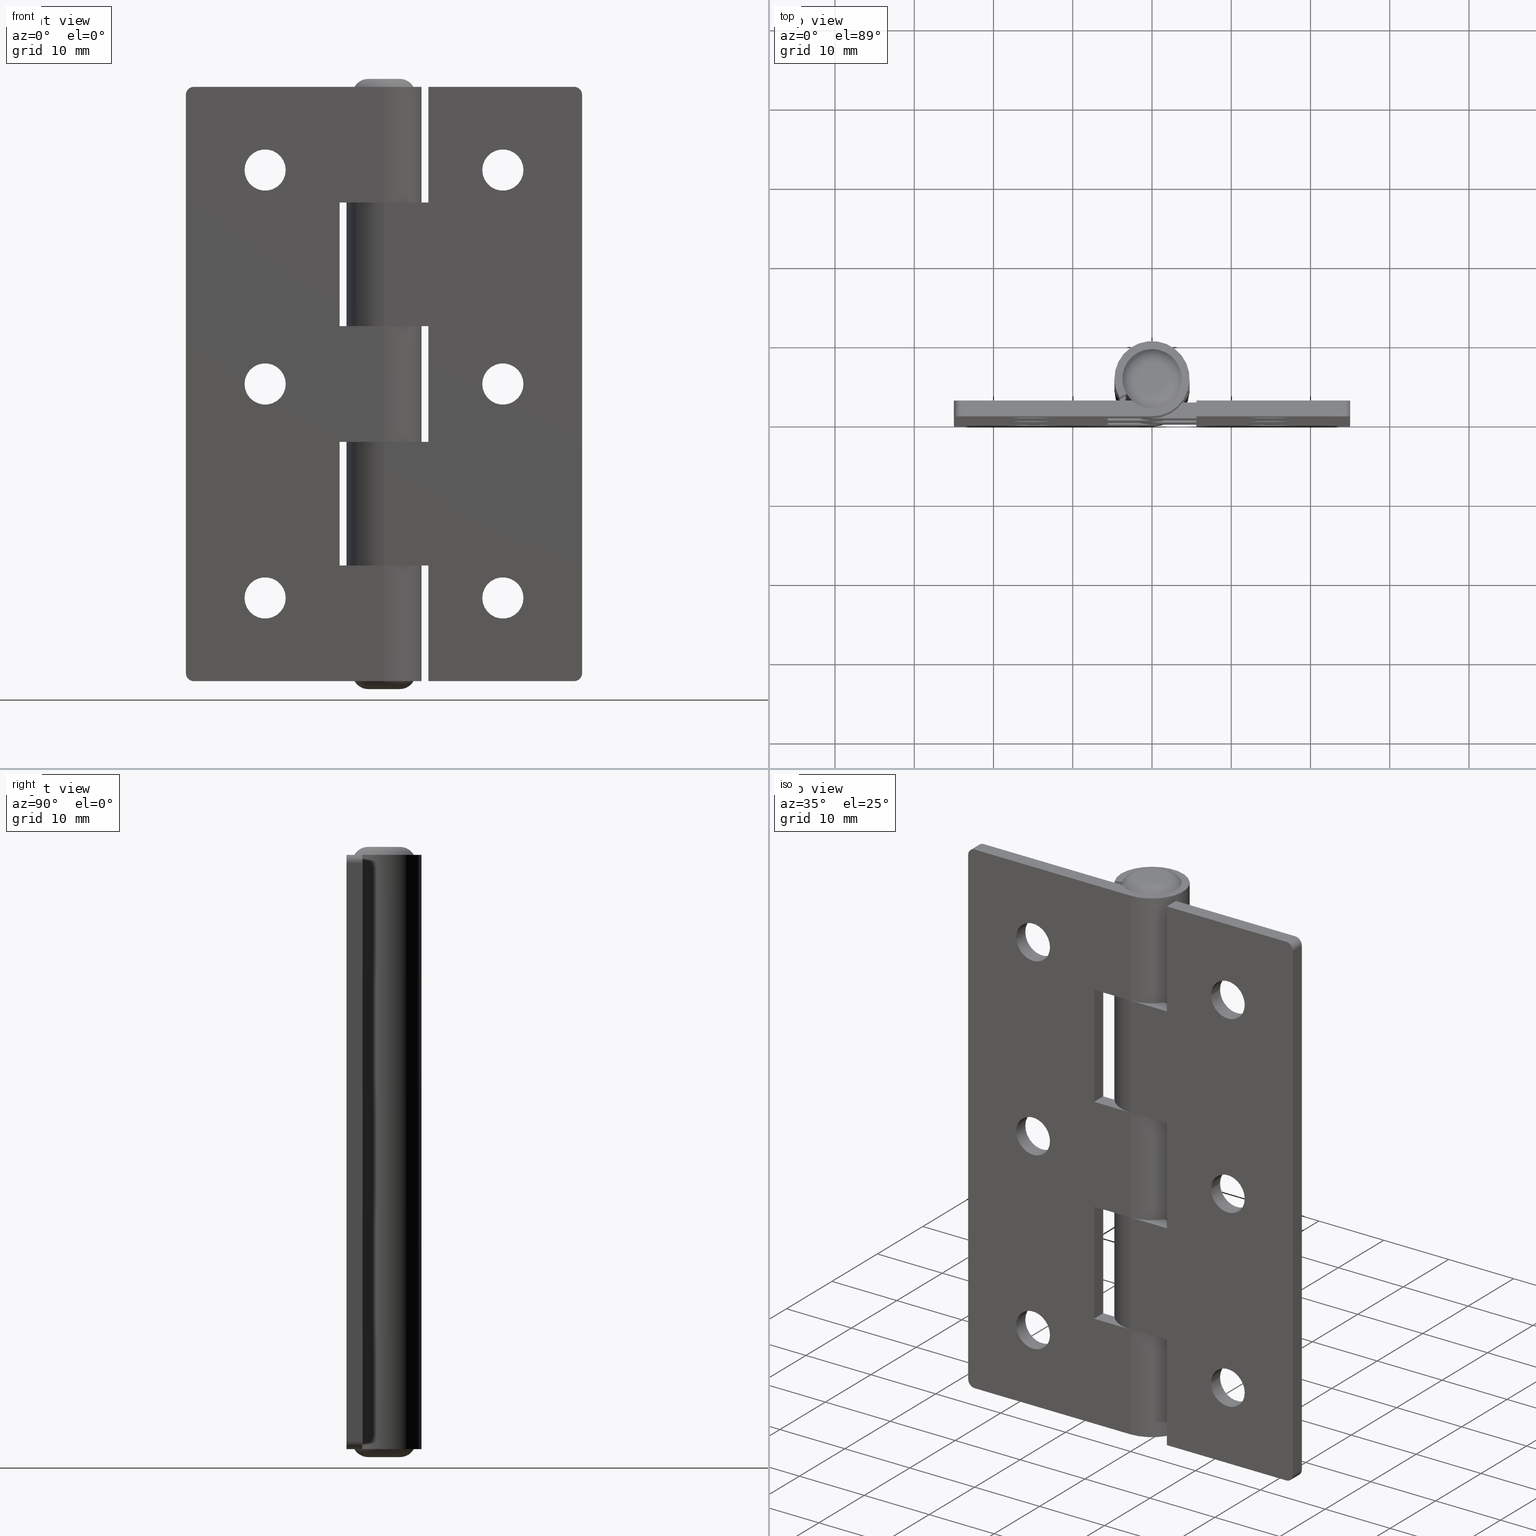
[diagram: canonical four-view strip — front | top / right | iso, engineering-drawing reading convention]
A machine part, canonical four-view strip (front | top / right | iso — engineering-drawing reading convention). The complete STEP part file that produces these views, byte-faithful:
ISO-10303-21;
HEADER;
/* Generated by software containing ST-Developer
 * from STEP Tools, Inc. (www.steptools.com) 
 */

FILE_DESCRIPTION(
/* description */ (''),
/* implementation_level */ '2;1');

FILE_NAME(
/* name */ '\\\\SYNOLOGYNAS\\web\\db2\\HG7550-20\\HG7550-20.stp',
/* time_stamp */ '2025-11-05T15:15:11+09:00',
/* author */ ('user'),
/* organization */ (''),
/* preprocessor_version */ 'ST-DEVELOPER v15.6',
/* originating_system */ 'Autodesk Inventor 2015',
/* authorisation */ '');

FILE_SCHEMA (('AUTOMOTIVE_DESIGN { 1 0 10303 214 3 1 1 }'));
ENDSEC;

DATA;
#10=MECHANICAL_DESIGN_GEOMETRIC_PRESENTATION_REPRESENTATION('',(#25,#26,
#27),#1703);
#11=ITEM_DEFINED_TRANSFORMATION($,$,#1006,#1110);
#12=ITEM_DEFINED_TRANSFORMATION($,$,#1067,#1111);
#13=(
REPRESENTATION_RELATIONSHIP($,$,#1718,#1720)
REPRESENTATION_RELATIONSHIP_WITH_TRANSFORMATION(#11)
SHAPE_REPRESENTATION_RELATIONSHIP()
);
#14=(
REPRESENTATION_RELATIONSHIP($,$,#1719,#1720)
REPRESENTATION_RELATIONSHIP_WITH_TRANSFORMATION(#12)
SHAPE_REPRESENTATION_RELATIONSHIP()
);
#15=CONTEXT_DEPENDENT_SHAPE_REPRESENTATION(#13,#1716);
#16=CONTEXT_DEPENDENT_SHAPE_REPRESENTATION(#14,#1717);
#17=NEXT_ASSEMBLY_USAGE_OCCURRENCE('HG7550-20-P1:1',$,$,#1724,#1722,$);
#18=NEXT_ASSEMBLY_USAGE_OCCURRENCE('HG7550-20-P2:1',$,$,#1724,#1723,$);
#19=TOROIDAL_SURFACE('',#1054,2.0179491924311,2.);
#20=TOROIDAL_SURFACE('',#1058,2.01794919243113,2.);
#21=SHAPE_REPRESENTATION_RELATIONSHIP('SRR','None',#1718,#23);
#22=SHAPE_REPRESENTATION_RELATIONSHIP('SRR','None',#1719,#24);
#23=ADVANCED_BREP_SHAPE_REPRESENTATION($,(#28,#29),#1700);
#24=ADVANCED_BREP_SHAPE_REPRESENTATION($,(#30),#1701);
#25=STYLED_ITEM('',(#1737),#28);
#26=STYLED_ITEM('',(#1737),#29);
#27=STYLED_ITEM('',(#1738),#30);
#28=MANIFOLD_SOLID_BREP('\X2\C194B9ACB4DC\X0\1',#1003);
#29=MANIFOLD_SOLID_BREP('\X2\C194B9ACB4DC\X0\2',#1004);
#30=MANIFOLD_SOLID_BREP('\X2\C194B9ACB4DC\X0\1',#1005);
#31=FACE_BOUND('',#144,.T.);
#32=FACE_BOUND('',#145,.T.);
#33=FACE_BOUND('',#146,.T.);
#34=FACE_BOUND('',#150,.T.);
#35=FACE_BOUND('',#151,.T.);
#36=FACE_BOUND('',#152,.T.);
#37=FACE_BOUND('',#154,.T.);
#38=FACE_BOUND('',#156,.T.);
#39=FACE_BOUND('',#158,.T.);
#40=FACE_BOUND('',#176,.T.);
#41=FACE_BOUND('',#179,.T.);
#42=FACE_BOUND('',#182,.T.);
#43=FACE_BOUND('',#184,.T.);
#44=FACE_BOUND('',#186,.T.);
#45=FACE_BOUND('',#190,.T.);
#46=FACE_BOUND('',#191,.T.);
#47=FACE_BOUND('',#192,.T.);
#48=FACE_BOUND('',#195,.T.);
#49=FACE_BOUND('',#196,.T.);
#50=FACE_BOUND('',#197,.T.);
#51=FACE_BOUND('',#200,.T.);
#52=FACE_BOUND('',#202,.T.);
#53=FACE_BOUND('',#204,.T.);
#54=PLANE('',#1010);
#55=PLANE('',#1013);
#56=PLANE('',#1020);
#57=PLANE('',#1023);
#58=PLANE('',#1030);
#59=PLANE('',#1033);
#60=PLANE('',#1034);
#61=PLANE('',#1037);
#62=PLANE('',#1040);
#63=PLANE('',#1041);
#64=PLANE('',#1046);
#65=PLANE('',#1047);
#66=PLANE('',#1048);
#67=PLANE('',#1052);
#68=PLANE('',#1057);
#69=PLANE('',#1061);
#70=PLANE('',#1065);
#71=PLANE('',#1066);
#72=PLANE('',#1071);
#73=PLANE('',#1072);
#74=PLANE('',#1079);
#75=PLANE('',#1083);
#76=PLANE('',#1087);
#77=PLANE('',#1088);
#78=PLANE('',#1091);
#79=PLANE('',#1094);
#80=PLANE('',#1095);
#81=PLANE('',#1098);
#82=PLANE('',#1101);
#83=PLANE('',#1104);
#84=PLANE('',#1107);
#85=PLANE('',#1108);
#86=FACE_OUTER_BOUND('',#141,.T.);
#87=FACE_OUTER_BOUND('',#142,.T.);
#88=FACE_OUTER_BOUND('',#143,.T.);
#89=FACE_OUTER_BOUND('',#147,.T.);
#90=FACE_OUTER_BOUND('',#148,.T.);
#91=FACE_OUTER_BOUND('',#149,.T.);
#92=FACE_OUTER_BOUND('',#153,.T.);
#93=FACE_OUTER_BOUND('',#155,.T.);
#94=FACE_OUTER_BOUND('',#157,.T.);
#95=FACE_OUTER_BOUND('',#159,.T.);
#96=FACE_OUTER_BOUND('',#160,.T.);
#97=FACE_OUTER_BOUND('',#161,.T.);
#98=FACE_OUTER_BOUND('',#162,.T.);
#99=FACE_OUTER_BOUND('',#163,.T.);
#100=FACE_OUTER_BOUND('',#164,.T.);
#101=FACE_OUTER_BOUND('',#165,.T.);
#102=FACE_OUTER_BOUND('',#166,.T.);
#103=FACE_OUTER_BOUND('',#167,.T.);
#104=FACE_OUTER_BOUND('',#168,.T.);
#105=FACE_OUTER_BOUND('',#169,.T.);
#106=FACE_OUTER_BOUND('',#170,.T.);
#107=FACE_OUTER_BOUND('',#171,.T.);
#108=FACE_OUTER_BOUND('',#172,.T.);
#109=FACE_OUTER_BOUND('',#173,.T.);
#110=FACE_OUTER_BOUND('',#174,.T.);
#111=FACE_OUTER_BOUND('',#175,.T.);
#112=FACE_OUTER_BOUND('',#177,.T.);
#113=FACE_OUTER_BOUND('',#178,.T.);
#114=FACE_OUTER_BOUND('',#180,.T.);
#115=FACE_OUTER_BOUND('',#181,.T.);
#116=FACE_OUTER_BOUND('',#183,.T.);
#117=FACE_OUTER_BOUND('',#185,.T.);
#118=FACE_OUTER_BOUND('',#187,.T.);
#119=FACE_OUTER_BOUND('',#188,.T.);
#120=FACE_OUTER_BOUND('',#189,.T.);
#121=FACE_OUTER_BOUND('',#193,.T.);
#122=FACE_OUTER_BOUND('',#194,.T.);
#123=FACE_OUTER_BOUND('',#198,.T.);
#124=FACE_OUTER_BOUND('',#199,.T.);
#125=FACE_OUTER_BOUND('',#201,.T.);
#126=FACE_OUTER_BOUND('',#203,.T.);
#127=FACE_OUTER_BOUND('',#205,.T.);
#128=FACE_OUTER_BOUND('',#206,.T.);
#129=FACE_OUTER_BOUND('',#207,.T.);
#130=FACE_OUTER_BOUND('',#208,.T.);
#131=FACE_OUTER_BOUND('',#209,.T.);
#132=FACE_OUTER_BOUND('',#210,.T.);
#133=FACE_OUTER_BOUND('',#211,.T.);
#134=FACE_OUTER_BOUND('',#212,.T.);
#135=FACE_OUTER_BOUND('',#213,.T.);
#136=FACE_OUTER_BOUND('',#214,.T.);
#137=FACE_OUTER_BOUND('',#215,.T.);
#138=FACE_OUTER_BOUND('',#216,.T.);
#139=FACE_OUTER_BOUND('',#217,.T.);
#140=FACE_OUTER_BOUND('',#218,.T.);
#141=EDGE_LOOP('',(#663,#664,#665,#666));
#142=EDGE_LOOP('',(#667,#668,#669,#670,#671,#672));
#143=EDGE_LOOP('',(#673,#674,#675,#676,#677,#678,#679,#680,#681,#682,#683,
#684,#685,#686));
#144=EDGE_LOOP('',(#687));
#145=EDGE_LOOP('',(#688));
#146=EDGE_LOOP('',(#689));
#147=EDGE_LOOP('',(#690,#691,#692,#693));
#148=EDGE_LOOP('',(#694,#695,#696,#697,#698,#699));
#149=EDGE_LOOP('',(#700,#701,#702,#703,#704,#705,#706,#707,#708,#709,#710,
#711,#712,#713));
#150=EDGE_LOOP('',(#714));
#151=EDGE_LOOP('',(#715));
#152=EDGE_LOOP('',(#716));
#153=EDGE_LOOP('',(#717));
#154=EDGE_LOOP('',(#718));
#155=EDGE_LOOP('',(#719));
#156=EDGE_LOOP('',(#720));
#157=EDGE_LOOP('',(#721));
#158=EDGE_LOOP('',(#722));
#159=EDGE_LOOP('',(#723,#724,#725,#726,#727,#728));
#160=EDGE_LOOP('',(#729,#730,#731,#732));
#161=EDGE_LOOP('',(#733,#734,#735,#736,#737,#738));
#162=EDGE_LOOP('',(#739,#740,#741,#742,#743,#744));
#163=EDGE_LOOP('',(#745,#746,#747,#748));
#164=EDGE_LOOP('',(#749,#750,#751,#752,#753,#754));
#165=EDGE_LOOP('',(#755,#756,#757,#758));
#166=EDGE_LOOP('',(#759,#760,#761,#762));
#167=EDGE_LOOP('',(#763,#764,#765,#766));
#168=EDGE_LOOP('',(#767,#768,#769,#770));
#169=EDGE_LOOP('',(#771,#772,#773,#774));
#170=EDGE_LOOP('',(#775,#776,#777,#778));
#171=EDGE_LOOP('',(#779,#780,#781,#782));
#172=EDGE_LOOP('',(#783,#784,#785,#786));
#173=EDGE_LOOP('',(#787,#788,#789,#790));
#174=EDGE_LOOP('',(#791,#792,#793,#794));
#175=EDGE_LOOP('',(#795));
#176=EDGE_LOOP('',(#796));
#177=EDGE_LOOP('',(#797));
#178=EDGE_LOOP('',(#798));
#179=EDGE_LOOP('',(#799));
#180=EDGE_LOOP('',(#800));
#181=EDGE_LOOP('',(#801));
#182=EDGE_LOOP('',(#802));
#183=EDGE_LOOP('',(#803));
#184=EDGE_LOOP('',(#804));
#185=EDGE_LOOP('',(#805));
#186=EDGE_LOOP('',(#806));
#187=EDGE_LOOP('',(#807,#808,#809,#810));
#188=EDGE_LOOP('',(#811,#812,#813,#814));
#189=EDGE_LOOP('',(#815,#816,#817,#818,#819,#820,#821,#822,#823,#824,#825,
#826,#827,#828));
#190=EDGE_LOOP('',(#829));
#191=EDGE_LOOP('',(#830));
#192=EDGE_LOOP('',(#831));
#193=EDGE_LOOP('',(#832,#833,#834,#835));
#194=EDGE_LOOP('',(#836,#837,#838,#839,#840,#841,#842,#843,#844,#845,#846,
#847,#848,#849));
#195=EDGE_LOOP('',(#850));
#196=EDGE_LOOP('',(#851));
#197=EDGE_LOOP('',(#852));
#198=EDGE_LOOP('',(#853,#854,#855,#856));
#199=EDGE_LOOP('',(#857));
#200=EDGE_LOOP('',(#858));
#201=EDGE_LOOP('',(#859));
#202=EDGE_LOOP('',(#860));
#203=EDGE_LOOP('',(#861));
#204=EDGE_LOOP('',(#862));
#205=EDGE_LOOP('',(#863,#864,#865,#866));
#206=EDGE_LOOP('',(#867,#868,#869,#870,#871,#872));
#207=EDGE_LOOP('',(#873,#874,#875,#876,#877,#878));
#208=EDGE_LOOP('',(#879,#880,#881,#882));
#209=EDGE_LOOP('',(#883,#884,#885,#886,#887,#888));
#210=EDGE_LOOP('',(#889,#890,#891,#892,#893,#894));
#211=EDGE_LOOP('',(#895,#896,#897,#898));
#212=EDGE_LOOP('',(#899,#900,#901,#902));
#213=EDGE_LOOP('',(#903,#904,#905,#906));
#214=EDGE_LOOP('',(#907,#908,#909,#910));
#215=EDGE_LOOP('',(#911,#912,#913,#914));
#216=EDGE_LOOP('',(#915,#916,#917,#918));
#217=EDGE_LOOP('',(#919,#920,#921,#922));
#218=EDGE_LOOP('',(#923,#924,#925,#926));
#219=LINE('',#1416,#305);
#220=LINE('',#1419,#306);
#221=LINE('',#1422,#307);
#222=LINE('',#1426,#308);
#223=LINE('',#1429,#309);
#224=LINE('',#1432,#310);
#225=LINE('',#1436,#311);
#226=LINE('',#1438,#312);
#227=LINE('',#1440,#313);
#228=LINE('',#1442,#314);
#229=LINE('',#1444,#315);
#230=LINE('',#1446,#316);
#231=LINE('',#1448,#317);
#232=LINE('',#1450,#318);
#233=LINE('',#1452,#319);
#234=LINE('',#1453,#320);
#235=LINE('',#1464,#321);
#236=LINE('',#1465,#322);
#237=LINE('',#1468,#323);
#238=LINE('',#1472,#324);
#239=LINE('',#1476,#325);
#240=LINE('',#1478,#326);
#241=LINE('',#1480,#327);
#242=LINE('',#1482,#328);
#243=LINE('',#1484,#329);
#244=LINE('',#1486,#330);
#245=LINE('',#1488,#331);
#246=LINE('',#1490,#332);
#247=LINE('',#1491,#333);
#248=LINE('',#1492,#334);
#249=LINE('',#1505,#335);
#250=LINE('',#1508,#336);
#251=LINE('',#1510,#337);
#252=LINE('',#1515,#338);
#253=LINE('',#1520,#339);
#254=LINE('',#1523,#340);
#255=LINE('',#1525,#341);
#256=LINE('',#1530,#342);
#257=LINE('',#1533,#343);
#258=LINE('',#1535,#344);
#259=LINE('',#1537,#345);
#260=LINE('',#1539,#346);
#261=LINE('',#1541,#347);
#262=LINE('',#1542,#348);
#263=LINE('',#1573,#349);
#264=LINE('',#1576,#350);
#265=LINE('',#1579,#351);
#266=LINE('',#1581,#352);
#267=LINE('',#1582,#353);
#268=LINE('',#1585,#354);
#269=LINE('',#1587,#355);
#270=LINE('',#1589,#356);
#271=LINE('',#1591,#357);
#272=LINE('',#1593,#358);
#273=LINE('',#1595,#359);
#274=LINE('',#1597,#360);
#275=LINE('',#1599,#361);
#276=LINE('',#1601,#362);
#277=LINE('',#1603,#363);
#278=LINE('',#1605,#364);
#279=LINE('',#1615,#365);
#280=LINE('',#1619,#366);
#281=LINE('',#1621,#367);
#282=LINE('',#1623,#368);
#283=LINE('',#1625,#369);
#284=LINE('',#1627,#370);
#285=LINE('',#1629,#371);
#286=LINE('',#1631,#372);
#287=LINE('',#1633,#373);
#288=LINE('',#1635,#374);
#289=LINE('',#1637,#375);
#290=LINE('',#1638,#376);
#291=LINE('',#1646,#377);
#292=LINE('',#1651,#378);
#293=LINE('',#1656,#379);
#294=LINE('',#1661,#380);
#295=LINE('',#1664,#381);
#296=LINE('',#1666,#382);
#297=LINE('',#1670,#383);
#298=LINE('',#1673,#384);
#299=LINE('',#1678,#385);
#300=LINE('',#1680,#386);
#301=LINE('',#1683,#387);
#302=LINE('',#1685,#388);
#303=LINE('',#1687,#389);
#304=LINE('',#1690,#390);
#305=VECTOR('',#1118,2.);
#306=VECTOR('',#1121,2.);
#307=VECTOR('',#1124,24.);
#308=VECTOR('',#1127,2.);
#309=VECTOR('',#1130,24.);
#310=VECTOR('',#1133,73.);
#311=VECTOR('',#1136,24.);
#312=VECTOR('',#1137,14.6);
#313=VECTOR('',#1138,5.60000000000001);
#314=VECTOR('',#1139,15.6);
#315=VECTOR('',#1140,5.6);
#316=VECTOR('',#1141,14.6);
#317=VECTOR('',#1142,5.6);
#318=VECTOR('',#1143,15.6);
#319=VECTOR('',#1144,5.59999999999999);
#320=VECTOR('',#1145,14.6);
#321=VECTOR('',#1156,2.);
#322=VECTOR('',#1157,2.);
#323=VECTOR('',#1160,24.);
#324=VECTOR('',#1163,2.);
#325=VECTOR('',#1168,14.6);
#326=VECTOR('',#1169,5.6);
#327=VECTOR('',#1170,15.6);
#328=VECTOR('',#1171,5.6);
#329=VECTOR('',#1172,14.6);
#330=VECTOR('',#1173,5.6);
#331=VECTOR('',#1174,15.6);
#332=VECTOR('',#1175,5.60000000000001);
#333=VECTOR('',#1176,14.6);
#334=VECTOR('',#1177,73.);
#335=VECTOR('',#1194,2.);
#336=VECTOR('',#1197,2.);
#337=VECTOR('',#1200,2.);
#338=VECTOR('',#1205,2.);
#339=VECTOR('',#1212,2.);
#340=VECTOR('',#1215,2.);
#341=VECTOR('',#1218,2.);
#342=VECTOR('',#1223,2.);
#343=VECTOR('',#1228,14.6);
#344=VECTOR('',#1231,14.6);
#345=VECTOR('',#1234,14.6);
#346=VECTOR('',#1237,14.6);
#347=VECTOR('',#1240,14.6);
#348=VECTOR('',#1241,14.6);
#349=VECTOR('',#1284,2.);
#350=VECTOR('',#1287,2.);
#351=VECTOR('',#1290,73.);
#352=VECTOR('',#1291,2.);
#353=VECTOR('',#1292,73.);
#354=VECTOR('',#1295,18.4);
#355=VECTOR('',#1296,14.6);
#356=VECTOR('',#1297,5.6);
#357=VECTOR('',#1298,15.6);
#358=VECTOR('',#1299,5.6);
#359=VECTOR('',#1300,14.6);
#360=VECTOR('',#1301,5.6);
#361=VECTOR('',#1302,15.6);
#362=VECTOR('',#1303,5.60000000000001);
#363=VECTOR('',#1304,14.6);
#364=VECTOR('',#1305,18.4);
#365=VECTOR('',#1316,2.);
#366=VECTOR('',#1321,18.4);
#367=VECTOR('',#1322,14.6);
#368=VECTOR('',#1323,5.60000000000001);
#369=VECTOR('',#1324,15.6);
#370=VECTOR('',#1325,5.6);
#371=VECTOR('',#1326,14.6);
#372=VECTOR('',#1327,5.6);
#373=VECTOR('',#1328,15.6);
#374=VECTOR('',#1329,5.59999999999999);
#375=VECTOR('',#1330,14.6);
#376=VECTOR('',#1331,18.4);
#377=VECTOR('',#1340,2.);
#378=VECTOR('',#1349,2.);
#379=VECTOR('',#1354,2.);
#380=VECTOR('',#1361,2.);
#381=VECTOR('',#1364,2.);
#382=VECTOR('',#1367,2.);
#383=VECTOR('',#1372,2.);
#384=VECTOR('',#1375,2.);
#385=VECTOR('',#1380,2.);
#386=VECTOR('',#1383,2.);
#387=VECTOR('',#1388,15.6);
#388=VECTOR('',#1391,15.6);
#389=VECTOR('',#1394,15.6);
#390=VECTOR('',#1399,15.6);
#391=CIRCLE('',#1008,1.);
#392=CIRCLE('',#1009,1.);
#393=CIRCLE('',#1011,2.75);
#394=CIRCLE('',#1012,4.75);
#395=CIRCLE('',#1014,1.);
#396=CIRCLE('',#1015,2.6);
#397=CIRCLE('',#1016,2.6);
#398=CIRCLE('',#1017,2.6);
#399=CIRCLE('',#1019,1.);
#400=CIRCLE('',#1021,4.75);
#401=CIRCLE('',#1022,2.75);
#402=CIRCLE('',#1024,2.6);
#403=CIRCLE('',#1025,2.6);
#404=CIRCLE('',#1026,2.6);
#405=CIRCLE('',#1031,4.75);
#406=CIRCLE('',#1032,2.75);
#407=CIRCLE('',#1035,4.75);
#408=CIRCLE('',#1036,2.75);
#409=CIRCLE('',#1038,4.75);
#410=CIRCLE('',#1039,2.75);
#411=CIRCLE('',#1042,4.75);
#412=CIRCLE('',#1043,2.75);
#413=CIRCLE('',#1055,3.74999999999998);
#414=CIRCLE('',#1056,2.0179491924311);
#415=CIRCLE('',#1059,2.01794919243113);
#416=CIRCLE('',#1060,3.75000000000001);
#417=CIRCLE('',#1063,2.75000000000001);
#418=CIRCLE('',#1064,2.75000000000001);
#419=CIRCLE('',#1069,1.);
#420=CIRCLE('',#1070,1.);
#421=CIRCLE('',#1073,1.);
#422=CIRCLE('',#1074,2.6);
#423=CIRCLE('',#1075,2.6);
#424=CIRCLE('',#1076,2.6);
#425=CIRCLE('',#1078,1.);
#426=CIRCLE('',#1080,2.6);
#427=CIRCLE('',#1081,2.6);
#428=CIRCLE('',#1082,2.6);
#429=CIRCLE('',#1089,4.75);
#430=CIRCLE('',#1090,2.75);
#431=CIRCLE('',#1092,4.75);
#432=CIRCLE('',#1093,2.75);
#433=CIRCLE('',#1096,4.75);
#434=CIRCLE('',#1097,2.75);
#435=CIRCLE('',#1099,4.75);
#436=CIRCLE('',#1100,2.75);
#437=VERTEX_POINT('',#1412);
#438=VERTEX_POINT('',#1413);
#439=VERTEX_POINT('',#1415);
#440=VERTEX_POINT('',#1417);
#441=VERTEX_POINT('',#1421);
#442=VERTEX_POINT('',#1423);
#443=VERTEX_POINT('',#1425);
#444=VERTEX_POINT('',#1427);
#445=VERTEX_POINT('',#1431);
#446=VERTEX_POINT('',#1433);
#447=VERTEX_POINT('',#1435);
#448=VERTEX_POINT('',#1437);
#449=VERTEX_POINT('',#1439);
#450=VERTEX_POINT('',#1441);
#451=VERTEX_POINT('',#1443);
#452=VERTEX_POINT('',#1445);
#453=VERTEX_POINT('',#1447);
#454=VERTEX_POINT('',#1449);
#455=VERTEX_POINT('',#1451);
#456=VERTEX_POINT('',#1454);
#457=VERTEX_POINT('',#1456);
#458=VERTEX_POINT('',#1458);
#459=VERTEX_POINT('',#1461);
#460=VERTEX_POINT('',#1462);
#461=VERTEX_POINT('',#1467);
#462=VERTEX_POINT('',#1469);
#463=VERTEX_POINT('',#1471);
#464=VERTEX_POINT('',#1475);
#465=VERTEX_POINT('',#1477);
#466=VERTEX_POINT('',#1479);
#467=VERTEX_POINT('',#1481);
#468=VERTEX_POINT('',#1483);
#469=VERTEX_POINT('',#1485);
#470=VERTEX_POINT('',#1487);
#471=VERTEX_POINT('',#1489);
#472=VERTEX_POINT('',#1493);
#473=VERTEX_POINT('',#1495);
#474=VERTEX_POINT('',#1497);
#475=VERTEX_POINT('',#1503);
#476=VERTEX_POINT('',#1506);
#477=VERTEX_POINT('',#1512);
#478=VERTEX_POINT('',#1514);
#479=VERTEX_POINT('',#1518);
#480=VERTEX_POINT('',#1521);
#481=VERTEX_POINT('',#1527);
#482=VERTEX_POINT('',#1529);
#483=VERTEX_POINT('',#1549);
#484=VERTEX_POINT('',#1551);
#485=VERTEX_POINT('',#1555);
#486=VERTEX_POINT('',#1557);
#487=VERTEX_POINT('',#1561);
#488=VERTEX_POINT('',#1563);
#489=VERTEX_POINT('',#1569);
#490=VERTEX_POINT('',#1570);
#491=VERTEX_POINT('',#1572);
#492=VERTEX_POINT('',#1574);
#493=VERTEX_POINT('',#1578);
#494=VERTEX_POINT('',#1580);
#495=VERTEX_POINT('',#1584);
#496=VERTEX_POINT('',#1586);
#497=VERTEX_POINT('',#1588);
#498=VERTEX_POINT('',#1590);
#499=VERTEX_POINT('',#1592);
#500=VERTEX_POINT('',#1594);
#501=VERTEX_POINT('',#1596);
#502=VERTEX_POINT('',#1598);
#503=VERTEX_POINT('',#1600);
#504=VERTEX_POINT('',#1602);
#505=VERTEX_POINT('',#1604);
#506=VERTEX_POINT('',#1607);
#507=VERTEX_POINT('',#1609);
#508=VERTEX_POINT('',#1611);
#509=VERTEX_POINT('',#1614);
#510=VERTEX_POINT('',#1618);
#511=VERTEX_POINT('',#1620);
#512=VERTEX_POINT('',#1622);
#513=VERTEX_POINT('',#1624);
#514=VERTEX_POINT('',#1626);
#515=VERTEX_POINT('',#1628);
#516=VERTEX_POINT('',#1630);
#517=VERTEX_POINT('',#1632);
#518=VERTEX_POINT('',#1634);
#519=VERTEX_POINT('',#1636);
#520=VERTEX_POINT('',#1639);
#521=VERTEX_POINT('',#1641);
#522=VERTEX_POINT('',#1643);
#523=VERTEX_POINT('',#1653);
#524=VERTEX_POINT('',#1655);
#525=VERTEX_POINT('',#1659);
#526=VERTEX_POINT('',#1662);
#527=VERTEX_POINT('',#1668);
#528=VERTEX_POINT('',#1671);
#529=VERTEX_POINT('',#1675);
#530=VERTEX_POINT('',#1677);
#531=EDGE_CURVE('',#437,#438,#391,.T.);
#532=EDGE_CURVE('',#438,#439,#219,.T.);
#533=EDGE_CURVE('',#439,#440,#392,.T.);
#534=EDGE_CURVE('',#440,#437,#220,.T.);
#535=EDGE_CURVE('',#438,#441,#221,.T.);
#536=EDGE_CURVE('',#441,#442,#393,.T.);
#537=EDGE_CURVE('',#442,#443,#222,.T.);
#538=EDGE_CURVE('',#443,#444,#394,.T.);
#539=EDGE_CURVE('',#444,#439,#223,.T.);
#540=EDGE_CURVE('',#437,#445,#224,.T.);
#541=EDGE_CURVE('',#446,#445,#395,.T.);
#542=EDGE_CURVE('',#447,#446,#225,.T.);
#543=EDGE_CURVE('',#448,#447,#226,.T.);
#544=EDGE_CURVE('',#448,#449,#227,.T.);
#545=EDGE_CURVE('',#449,#450,#228,.T.);
#546=EDGE_CURVE('',#450,#451,#229,.T.);
#547=EDGE_CURVE('',#452,#451,#230,.T.);
#548=EDGE_CURVE('',#452,#453,#231,.T.);
#549=EDGE_CURVE('',#453,#454,#232,.T.);
#550=EDGE_CURVE('',#454,#455,#233,.T.);
#551=EDGE_CURVE('',#441,#455,#234,.T.);
#552=EDGE_CURVE('',#456,#456,#396,.T.);
#553=EDGE_CURVE('',#457,#457,#397,.T.);
#554=EDGE_CURVE('',#458,#458,#398,.T.);
#555=EDGE_CURVE('',#459,#460,#399,.T.);
#556=EDGE_CURVE('',#460,#446,#235,.T.);
#557=EDGE_CURVE('',#445,#459,#236,.T.);
#558=EDGE_CURVE('',#460,#461,#237,.T.);
#559=EDGE_CURVE('',#461,#462,#400,.T.);
#560=EDGE_CURVE('',#462,#463,#238,.T.);
#561=EDGE_CURVE('',#463,#447,#401,.T.);
#562=EDGE_CURVE('',#444,#464,#239,.T.);
#563=EDGE_CURVE('',#464,#465,#240,.T.);
#564=EDGE_CURVE('',#465,#466,#241,.T.);
#565=EDGE_CURVE('',#466,#467,#242,.T.);
#566=EDGE_CURVE('',#467,#468,#243,.T.);
#567=EDGE_CURVE('',#468,#469,#244,.T.);
#568=EDGE_CURVE('',#469,#470,#245,.T.);
#569=EDGE_CURVE('',#470,#471,#246,.T.);
#570=EDGE_CURVE('',#471,#461,#247,.T.);
#571=EDGE_CURVE('',#440,#459,#248,.T.);
#572=EDGE_CURVE('',#472,#472,#402,.T.);
#573=EDGE_CURVE('',#473,#473,#403,.T.);
#574=EDGE_CURVE('',#474,#474,#404,.T.);
#575=EDGE_CURVE('',#467,#475,#405,.T.);
#576=EDGE_CURVE('',#466,#453,#249,.T.);
#577=EDGE_CURVE('',#476,#452,#406,.T.);
#578=EDGE_CURVE('',#475,#476,#250,.T.);
#579=EDGE_CURVE('',#465,#454,#251,.T.);
#580=EDGE_CURVE('',#477,#464,#407,.T.);
#581=EDGE_CURVE('',#478,#477,#252,.T.);
#582=EDGE_CURVE('',#455,#478,#408,.T.);
#583=EDGE_CURVE('',#471,#479,#409,.T.);
#584=EDGE_CURVE('',#470,#449,#253,.T.);
#585=EDGE_CURVE('',#480,#448,#410,.T.);
#586=EDGE_CURVE('',#479,#480,#254,.T.);
#587=EDGE_CURVE('',#469,#450,#255,.T.);
#588=EDGE_CURVE('',#481,#468,#411,.T.);
#589=EDGE_CURVE('',#482,#481,#256,.T.);
#590=EDGE_CURVE('',#451,#482,#412,.T.);
#591=EDGE_CURVE('',#443,#477,#257,.T.);
#592=EDGE_CURVE('',#479,#462,#258,.T.);
#593=EDGE_CURVE('',#480,#463,#259,.T.);
#594=EDGE_CURVE('',#442,#478,#260,.T.);
#595=EDGE_CURVE('',#476,#482,#261,.T.);
#596=EDGE_CURVE('',#475,#481,#262,.T.);
#597=EDGE_CURVE('',#483,#483,#413,.T.);
#598=EDGE_CURVE('',#484,#484,#414,.T.);
#599=EDGE_CURVE('',#485,#485,#415,.T.);
#600=EDGE_CURVE('',#486,#486,#416,.T.);
#601=EDGE_CURVE('',#487,#487,#417,.T.);
#602=EDGE_CURVE('',#488,#488,#418,.T.);
#603=EDGE_CURVE('',#489,#490,#419,.T.);
#604=EDGE_CURVE('',#490,#491,#263,.T.);
#605=EDGE_CURVE('',#491,#492,#420,.T.);
#606=EDGE_CURVE('',#492,#489,#264,.T.);
#607=EDGE_CURVE('',#492,#493,#265,.T.);
#608=EDGE_CURVE('',#494,#493,#266,.T.);
#609=EDGE_CURVE('',#489,#494,#267,.T.);
#610=EDGE_CURVE('',#495,#491,#268,.T.);
#611=EDGE_CURVE('',#495,#496,#269,.T.);
#612=EDGE_CURVE('',#496,#497,#270,.T.);
#613=EDGE_CURVE('',#497,#498,#271,.T.);
#614=EDGE_CURVE('',#498,#499,#272,.T.);
#615=EDGE_CURVE('',#499,#500,#273,.T.);
#616=EDGE_CURVE('',#500,#501,#274,.T.);
#617=EDGE_CURVE('',#501,#502,#275,.T.);
#618=EDGE_CURVE('',#502,#503,#276,.T.);
#619=EDGE_CURVE('',#503,#504,#277,.T.);
#620=EDGE_CURVE('',#505,#504,#278,.T.);
#621=EDGE_CURVE('',#493,#505,#421,.T.);
#622=EDGE_CURVE('',#506,#506,#422,.T.);
#623=EDGE_CURVE('',#507,#507,#423,.T.);
#624=EDGE_CURVE('',#508,#508,#424,.T.);
#625=EDGE_CURVE('',#505,#509,#279,.T.);
#626=EDGE_CURVE('',#509,#494,#425,.T.);
#627=EDGE_CURVE('',#510,#509,#280,.T.);
#628=EDGE_CURVE('',#510,#511,#281,.T.);
#629=EDGE_CURVE('',#511,#512,#282,.T.);
#630=EDGE_CURVE('',#513,#512,#283,.T.);
#631=EDGE_CURVE('',#513,#514,#284,.T.);
#632=EDGE_CURVE('',#514,#515,#285,.T.);
#633=EDGE_CURVE('',#515,#516,#286,.T.);
#634=EDGE_CURVE('',#517,#516,#287,.T.);
#635=EDGE_CURVE('',#517,#518,#288,.T.);
#636=EDGE_CURVE('',#518,#519,#289,.T.);
#637=EDGE_CURVE('',#490,#519,#290,.T.);
#638=EDGE_CURVE('',#520,#520,#426,.T.);
#639=EDGE_CURVE('',#521,#521,#427,.T.);
#640=EDGE_CURVE('',#522,#522,#428,.T.);
#641=EDGE_CURVE('',#504,#510,#291,.T.);
#642=EDGE_CURVE('',#503,#511,#292,.T.);
#643=EDGE_CURVE('',#523,#502,#429,.T.);
#644=EDGE_CURVE('',#524,#523,#293,.T.);
#645=EDGE_CURVE('',#512,#524,#430,.T.);
#646=EDGE_CURVE('',#497,#525,#431,.T.);
#647=EDGE_CURVE('',#496,#518,#294,.T.);
#648=EDGE_CURVE('',#526,#517,#432,.T.);
#649=EDGE_CURVE('',#525,#526,#295,.T.);
#650=EDGE_CURVE('',#519,#495,#296,.T.);
#651=EDGE_CURVE('',#501,#527,#433,.T.);
#652=EDGE_CURVE('',#500,#514,#297,.T.);
#653=EDGE_CURVE('',#528,#513,#434,.T.);
#654=EDGE_CURVE('',#527,#528,#298,.T.);
#655=EDGE_CURVE('',#529,#498,#435,.T.);
#656=EDGE_CURVE('',#530,#529,#299,.T.);
#657=EDGE_CURVE('',#516,#530,#436,.T.);
#658=EDGE_CURVE('',#499,#515,#300,.T.);
#659=EDGE_CURVE('',#525,#529,#301,.T.);
#660=EDGE_CURVE('',#527,#523,#302,.T.);
#661=EDGE_CURVE('',#526,#530,#303,.T.);
#662=EDGE_CURVE('',#528,#524,#304,.T.);
#663=ORIENTED_EDGE('',*,*,#531,.T.);
#664=ORIENTED_EDGE('',*,*,#532,.T.);
#665=ORIENTED_EDGE('',*,*,#533,.T.);
#666=ORIENTED_EDGE('',*,*,#534,.T.);
#667=ORIENTED_EDGE('',*,*,#532,.F.);
#668=ORIENTED_EDGE('',*,*,#535,.T.);
#669=ORIENTED_EDGE('',*,*,#536,.T.);
#670=ORIENTED_EDGE('',*,*,#537,.T.);
#671=ORIENTED_EDGE('',*,*,#538,.T.);
#672=ORIENTED_EDGE('',*,*,#539,.T.);
#673=ORIENTED_EDGE('',*,*,#531,.F.);
#674=ORIENTED_EDGE('',*,*,#540,.T.);
#675=ORIENTED_EDGE('',*,*,#541,.F.);
#676=ORIENTED_EDGE('',*,*,#542,.F.);
#677=ORIENTED_EDGE('',*,*,#543,.F.);
#678=ORIENTED_EDGE('',*,*,#544,.T.);
#679=ORIENTED_EDGE('',*,*,#545,.T.);
#680=ORIENTED_EDGE('',*,*,#546,.T.);
#681=ORIENTED_EDGE('',*,*,#547,.F.);
#682=ORIENTED_EDGE('',*,*,#548,.T.);
#683=ORIENTED_EDGE('',*,*,#549,.T.);
#684=ORIENTED_EDGE('',*,*,#550,.T.);
#685=ORIENTED_EDGE('',*,*,#551,.F.);
#686=ORIENTED_EDGE('',*,*,#535,.F.);
#687=ORIENTED_EDGE('',*,*,#552,.T.);
#688=ORIENTED_EDGE('',*,*,#553,.T.);
#689=ORIENTED_EDGE('',*,*,#554,.T.);
#690=ORIENTED_EDGE('',*,*,#555,.T.);
#691=ORIENTED_EDGE('',*,*,#556,.T.);
#692=ORIENTED_EDGE('',*,*,#541,.T.);
#693=ORIENTED_EDGE('',*,*,#557,.T.);
#694=ORIENTED_EDGE('',*,*,#556,.F.);
#695=ORIENTED_EDGE('',*,*,#558,.T.);
#696=ORIENTED_EDGE('',*,*,#559,.T.);
#697=ORIENTED_EDGE('',*,*,#560,.T.);
#698=ORIENTED_EDGE('',*,*,#561,.T.);
#699=ORIENTED_EDGE('',*,*,#542,.T.);
#700=ORIENTED_EDGE('',*,*,#533,.F.);
#701=ORIENTED_EDGE('',*,*,#539,.F.);
#702=ORIENTED_EDGE('',*,*,#562,.T.);
#703=ORIENTED_EDGE('',*,*,#563,.T.);
#704=ORIENTED_EDGE('',*,*,#564,.T.);
#705=ORIENTED_EDGE('',*,*,#565,.T.);
#706=ORIENTED_EDGE('',*,*,#566,.T.);
#707=ORIENTED_EDGE('',*,*,#567,.T.);
#708=ORIENTED_EDGE('',*,*,#568,.T.);
#709=ORIENTED_EDGE('',*,*,#569,.T.);
#710=ORIENTED_EDGE('',*,*,#570,.T.);
#711=ORIENTED_EDGE('',*,*,#558,.F.);
#712=ORIENTED_EDGE('',*,*,#555,.F.);
#713=ORIENTED_EDGE('',*,*,#571,.F.);
#714=ORIENTED_EDGE('',*,*,#572,.T.);
#715=ORIENTED_EDGE('',*,*,#573,.T.);
#716=ORIENTED_EDGE('',*,*,#574,.T.);
#717=ORIENTED_EDGE('',*,*,#574,.F.);
#718=ORIENTED_EDGE('',*,*,#554,.F.);
#719=ORIENTED_EDGE('',*,*,#573,.F.);
#720=ORIENTED_EDGE('',*,*,#553,.F.);
#721=ORIENTED_EDGE('',*,*,#572,.F.);
#722=ORIENTED_EDGE('',*,*,#552,.F.);
#723=ORIENTED_EDGE('',*,*,#575,.F.);
#724=ORIENTED_EDGE('',*,*,#565,.F.);
#725=ORIENTED_EDGE('',*,*,#576,.T.);
#726=ORIENTED_EDGE('',*,*,#548,.F.);
#727=ORIENTED_EDGE('',*,*,#577,.F.);
#728=ORIENTED_EDGE('',*,*,#578,.F.);
#729=ORIENTED_EDGE('',*,*,#549,.F.);
#730=ORIENTED_EDGE('',*,*,#576,.F.);
#731=ORIENTED_EDGE('',*,*,#564,.F.);
#732=ORIENTED_EDGE('',*,*,#579,.T.);
#733=ORIENTED_EDGE('',*,*,#580,.F.);
#734=ORIENTED_EDGE('',*,*,#581,.F.);
#735=ORIENTED_EDGE('',*,*,#582,.F.);
#736=ORIENTED_EDGE('',*,*,#550,.F.);
#737=ORIENTED_EDGE('',*,*,#579,.F.);
#738=ORIENTED_EDGE('',*,*,#563,.F.);
#739=ORIENTED_EDGE('',*,*,#583,.F.);
#740=ORIENTED_EDGE('',*,*,#569,.F.);
#741=ORIENTED_EDGE('',*,*,#584,.T.);
#742=ORIENTED_EDGE('',*,*,#544,.F.);
#743=ORIENTED_EDGE('',*,*,#585,.F.);
#744=ORIENTED_EDGE('',*,*,#586,.F.);
#745=ORIENTED_EDGE('',*,*,#545,.F.);
#746=ORIENTED_EDGE('',*,*,#584,.F.);
#747=ORIENTED_EDGE('',*,*,#568,.F.);
#748=ORIENTED_EDGE('',*,*,#587,.T.);
#749=ORIENTED_EDGE('',*,*,#588,.F.);
#750=ORIENTED_EDGE('',*,*,#589,.F.);
#751=ORIENTED_EDGE('',*,*,#590,.F.);
#752=ORIENTED_EDGE('',*,*,#546,.F.);
#753=ORIENTED_EDGE('',*,*,#587,.F.);
#754=ORIENTED_EDGE('',*,*,#567,.F.);
#755=ORIENTED_EDGE('',*,*,#580,.T.);
#756=ORIENTED_EDGE('',*,*,#562,.F.);
#757=ORIENTED_EDGE('',*,*,#538,.F.);
#758=ORIENTED_EDGE('',*,*,#591,.T.);
#759=ORIENTED_EDGE('',*,*,#583,.T.);
#760=ORIENTED_EDGE('',*,*,#592,.T.);
#761=ORIENTED_EDGE('',*,*,#559,.F.);
#762=ORIENTED_EDGE('',*,*,#570,.F.);
#763=ORIENTED_EDGE('',*,*,#586,.T.);
#764=ORIENTED_EDGE('',*,*,#593,.T.);
#765=ORIENTED_EDGE('',*,*,#560,.F.);
#766=ORIENTED_EDGE('',*,*,#592,.F.);
#767=ORIENTED_EDGE('',*,*,#581,.T.);
#768=ORIENTED_EDGE('',*,*,#591,.F.);
#769=ORIENTED_EDGE('',*,*,#537,.F.);
#770=ORIENTED_EDGE('',*,*,#594,.T.);
#771=ORIENTED_EDGE('',*,*,#578,.T.);
#772=ORIENTED_EDGE('',*,*,#595,.T.);
#773=ORIENTED_EDGE('',*,*,#589,.T.);
#774=ORIENTED_EDGE('',*,*,#596,.F.);
#775=ORIENTED_EDGE('',*,*,#585,.T.);
#776=ORIENTED_EDGE('',*,*,#543,.T.);
#777=ORIENTED_EDGE('',*,*,#561,.F.);
#778=ORIENTED_EDGE('',*,*,#593,.F.);
#779=ORIENTED_EDGE('',*,*,#582,.T.);
#780=ORIENTED_EDGE('',*,*,#594,.F.);
#781=ORIENTED_EDGE('',*,*,#536,.F.);
#782=ORIENTED_EDGE('',*,*,#551,.T.);
#783=ORIENTED_EDGE('',*,*,#577,.T.);
#784=ORIENTED_EDGE('',*,*,#547,.T.);
#785=ORIENTED_EDGE('',*,*,#590,.T.);
#786=ORIENTED_EDGE('',*,*,#595,.F.);
#787=ORIENTED_EDGE('',*,*,#534,.F.);
#788=ORIENTED_EDGE('',*,*,#571,.T.);
#789=ORIENTED_EDGE('',*,*,#557,.F.);
#790=ORIENTED_EDGE('',*,*,#540,.F.);
#791=ORIENTED_EDGE('',*,*,#575,.T.);
#792=ORIENTED_EDGE('',*,*,#596,.T.);
#793=ORIENTED_EDGE('',*,*,#588,.T.);
#794=ORIENTED_EDGE('',*,*,#566,.F.);
#795=ORIENTED_EDGE('',*,*,#597,.T.);
#796=ORIENTED_EDGE('',*,*,#598,.T.);
#797=ORIENTED_EDGE('',*,*,#598,.F.);
#798=ORIENTED_EDGE('',*,*,#599,.T.);
#799=ORIENTED_EDGE('',*,*,#600,.F.);
#800=ORIENTED_EDGE('',*,*,#599,.F.);
#801=ORIENTED_EDGE('',*,*,#601,.F.);
#802=ORIENTED_EDGE('',*,*,#602,.F.);
#803=ORIENTED_EDGE('',*,*,#600,.T.);
#804=ORIENTED_EDGE('',*,*,#601,.T.);
#805=ORIENTED_EDGE('',*,*,#597,.F.);
#806=ORIENTED_EDGE('',*,*,#602,.T.);
#807=ORIENTED_EDGE('',*,*,#603,.T.);
#808=ORIENTED_EDGE('',*,*,#604,.T.);
#809=ORIENTED_EDGE('',*,*,#605,.T.);
#810=ORIENTED_EDGE('',*,*,#606,.T.);
#811=ORIENTED_EDGE('',*,*,#606,.F.);
#812=ORIENTED_EDGE('',*,*,#607,.T.);
#813=ORIENTED_EDGE('',*,*,#608,.F.);
#814=ORIENTED_EDGE('',*,*,#609,.F.);
#815=ORIENTED_EDGE('',*,*,#605,.F.);
#816=ORIENTED_EDGE('',*,*,#610,.F.);
#817=ORIENTED_EDGE('',*,*,#611,.T.);
#818=ORIENTED_EDGE('',*,*,#612,.T.);
#819=ORIENTED_EDGE('',*,*,#613,.T.);
#820=ORIENTED_EDGE('',*,*,#614,.T.);
#821=ORIENTED_EDGE('',*,*,#615,.T.);
#822=ORIENTED_EDGE('',*,*,#616,.T.);
#823=ORIENTED_EDGE('',*,*,#617,.T.);
#824=ORIENTED_EDGE('',*,*,#618,.T.);
#825=ORIENTED_EDGE('',*,*,#619,.T.);
#826=ORIENTED_EDGE('',*,*,#620,.F.);
#827=ORIENTED_EDGE('',*,*,#621,.F.);
#828=ORIENTED_EDGE('',*,*,#607,.F.);
#829=ORIENTED_EDGE('',*,*,#622,.T.);
#830=ORIENTED_EDGE('',*,*,#623,.T.);
#831=ORIENTED_EDGE('',*,*,#624,.T.);
#832=ORIENTED_EDGE('',*,*,#621,.T.);
#833=ORIENTED_EDGE('',*,*,#625,.T.);
#834=ORIENTED_EDGE('',*,*,#626,.T.);
#835=ORIENTED_EDGE('',*,*,#608,.T.);
#836=ORIENTED_EDGE('',*,*,#603,.F.);
#837=ORIENTED_EDGE('',*,*,#609,.T.);
#838=ORIENTED_EDGE('',*,*,#626,.F.);
#839=ORIENTED_EDGE('',*,*,#627,.F.);
#840=ORIENTED_EDGE('',*,*,#628,.T.);
#841=ORIENTED_EDGE('',*,*,#629,.T.);
#842=ORIENTED_EDGE('',*,*,#630,.F.);
#843=ORIENTED_EDGE('',*,*,#631,.T.);
#844=ORIENTED_EDGE('',*,*,#632,.T.);
#845=ORIENTED_EDGE('',*,*,#633,.T.);
#846=ORIENTED_EDGE('',*,*,#634,.F.);
#847=ORIENTED_EDGE('',*,*,#635,.T.);
#848=ORIENTED_EDGE('',*,*,#636,.T.);
#849=ORIENTED_EDGE('',*,*,#637,.F.);
#850=ORIENTED_EDGE('',*,*,#638,.T.);
#851=ORIENTED_EDGE('',*,*,#639,.T.);
#852=ORIENTED_EDGE('',*,*,#640,.T.);
#853=ORIENTED_EDGE('',*,*,#625,.F.);
#854=ORIENTED_EDGE('',*,*,#620,.T.);
#855=ORIENTED_EDGE('',*,*,#641,.T.);
#856=ORIENTED_EDGE('',*,*,#627,.T.);
#857=ORIENTED_EDGE('',*,*,#624,.F.);
#858=ORIENTED_EDGE('',*,*,#640,.F.);
#859=ORIENTED_EDGE('',*,*,#623,.F.);
#860=ORIENTED_EDGE('',*,*,#639,.F.);
#861=ORIENTED_EDGE('',*,*,#622,.F.);
#862=ORIENTED_EDGE('',*,*,#638,.F.);
#863=ORIENTED_EDGE('',*,*,#628,.F.);
#864=ORIENTED_EDGE('',*,*,#641,.F.);
#865=ORIENTED_EDGE('',*,*,#619,.F.);
#866=ORIENTED_EDGE('',*,*,#642,.T.);
#867=ORIENTED_EDGE('',*,*,#643,.F.);
#868=ORIENTED_EDGE('',*,*,#644,.F.);
#869=ORIENTED_EDGE('',*,*,#645,.F.);
#870=ORIENTED_EDGE('',*,*,#629,.F.);
#871=ORIENTED_EDGE('',*,*,#642,.F.);
#872=ORIENTED_EDGE('',*,*,#618,.F.);
#873=ORIENTED_EDGE('',*,*,#646,.F.);
#874=ORIENTED_EDGE('',*,*,#612,.F.);
#875=ORIENTED_EDGE('',*,*,#647,.T.);
#876=ORIENTED_EDGE('',*,*,#635,.F.);
#877=ORIENTED_EDGE('',*,*,#648,.F.);
#878=ORIENTED_EDGE('',*,*,#649,.F.);
#879=ORIENTED_EDGE('',*,*,#636,.F.);
#880=ORIENTED_EDGE('',*,*,#647,.F.);
#881=ORIENTED_EDGE('',*,*,#611,.F.);
#882=ORIENTED_EDGE('',*,*,#650,.F.);
#883=ORIENTED_EDGE('',*,*,#651,.F.);
#884=ORIENTED_EDGE('',*,*,#616,.F.);
#885=ORIENTED_EDGE('',*,*,#652,.T.);
#886=ORIENTED_EDGE('',*,*,#631,.F.);
#887=ORIENTED_EDGE('',*,*,#653,.F.);
#888=ORIENTED_EDGE('',*,*,#654,.F.);
#889=ORIENTED_EDGE('',*,*,#655,.F.);
#890=ORIENTED_EDGE('',*,*,#656,.F.);
#891=ORIENTED_EDGE('',*,*,#657,.F.);
#892=ORIENTED_EDGE('',*,*,#633,.F.);
#893=ORIENTED_EDGE('',*,*,#658,.F.);
#894=ORIENTED_EDGE('',*,*,#614,.F.);
#895=ORIENTED_EDGE('',*,*,#632,.F.);
#896=ORIENTED_EDGE('',*,*,#652,.F.);
#897=ORIENTED_EDGE('',*,*,#615,.F.);
#898=ORIENTED_EDGE('',*,*,#658,.T.);
#899=ORIENTED_EDGE('',*,*,#646,.T.);
#900=ORIENTED_EDGE('',*,*,#659,.T.);
#901=ORIENTED_EDGE('',*,*,#655,.T.);
#902=ORIENTED_EDGE('',*,*,#613,.F.);
#903=ORIENTED_EDGE('',*,*,#643,.T.);
#904=ORIENTED_EDGE('',*,*,#617,.F.);
#905=ORIENTED_EDGE('',*,*,#651,.T.);
#906=ORIENTED_EDGE('',*,*,#660,.T.);
#907=ORIENTED_EDGE('',*,*,#649,.T.);
#908=ORIENTED_EDGE('',*,*,#661,.T.);
#909=ORIENTED_EDGE('',*,*,#656,.T.);
#910=ORIENTED_EDGE('',*,*,#659,.F.);
#911=ORIENTED_EDGE('',*,*,#648,.T.);
#912=ORIENTED_EDGE('',*,*,#634,.T.);
#913=ORIENTED_EDGE('',*,*,#657,.T.);
#914=ORIENTED_EDGE('',*,*,#661,.F.);
#915=ORIENTED_EDGE('',*,*,#645,.T.);
#916=ORIENTED_EDGE('',*,*,#662,.F.);
#917=ORIENTED_EDGE('',*,*,#653,.T.);
#918=ORIENTED_EDGE('',*,*,#630,.T.);
#919=ORIENTED_EDGE('',*,*,#644,.T.);
#920=ORIENTED_EDGE('',*,*,#660,.F.);
#921=ORIENTED_EDGE('',*,*,#654,.T.);
#922=ORIENTED_EDGE('',*,*,#662,.T.);
#923=ORIENTED_EDGE('',*,*,#604,.F.);
#924=ORIENTED_EDGE('',*,*,#637,.T.);
#925=ORIENTED_EDGE('',*,*,#650,.T.);
#926=ORIENTED_EDGE('',*,*,#610,.T.);
#927=CYLINDRICAL_SURFACE('',#1007,1.);
#928=CYLINDRICAL_SURFACE('',#1018,1.);
#929=CYLINDRICAL_SURFACE('',#1027,2.6);
#930=CYLINDRICAL_SURFACE('',#1028,2.6);
#931=CYLINDRICAL_SURFACE('',#1029,2.6);
#932=CYLINDRICAL_SURFACE('',#1044,4.75);
#933=CYLINDRICAL_SURFACE('',#1045,4.75);
#934=CYLINDRICAL_SURFACE('',#1049,2.75);
#935=CYLINDRICAL_SURFACE('',#1050,2.75);
#936=CYLINDRICAL_SURFACE('',#1051,2.75);
#937=CYLINDRICAL_SURFACE('',#1053,4.75);
#938=CYLINDRICAL_SURFACE('',#1062,2.75000000000001);
#939=CYLINDRICAL_SURFACE('',#1068,1.);
#940=CYLINDRICAL_SURFACE('',#1077,1.);
#941=CYLINDRICAL_SURFACE('',#1084,2.6);
#942=CYLINDRICAL_SURFACE('',#1085,2.6);
#943=CYLINDRICAL_SURFACE('',#1086,2.6);
#944=CYLINDRICAL_SURFACE('',#1102,4.75);
#945=CYLINDRICAL_SURFACE('',#1103,4.75);
#946=CYLINDRICAL_SURFACE('',#1105,2.75);
#947=CYLINDRICAL_SURFACE('',#1106,2.75);
#948=ADVANCED_FACE('',(#86),#927,.T.);
#949=ADVANCED_FACE('',(#87),#54,.F.);
#950=ADVANCED_FACE('',(#88,#31,#32,#33),#55,.T.);
#951=ADVANCED_FACE('',(#89),#928,.T.);
#952=ADVANCED_FACE('',(#90),#56,.T.);
#953=ADVANCED_FACE('',(#91,#34,#35,#36),#57,.T.);
#954=ADVANCED_FACE('',(#92,#37),#929,.F.);
#955=ADVANCED_FACE('',(#93,#38),#930,.F.);
#956=ADVANCED_FACE('',(#94,#39),#931,.F.);
#957=ADVANCED_FACE('',(#95),#58,.F.);
#958=ADVANCED_FACE('',(#96),#59,.F.);
#959=ADVANCED_FACE('',(#97),#60,.F.);
#960=ADVANCED_FACE('',(#98),#61,.F.);
#961=ADVANCED_FACE('',(#99),#62,.F.);
#962=ADVANCED_FACE('',(#100),#63,.F.);
#963=ADVANCED_FACE('',(#101),#932,.T.);
#964=ADVANCED_FACE('',(#102),#933,.T.);
#965=ADVANCED_FACE('',(#103),#64,.T.);
#966=ADVANCED_FACE('',(#104),#65,.T.);
#967=ADVANCED_FACE('',(#105),#66,.T.);
#968=ADVANCED_FACE('',(#106),#934,.F.);
#969=ADVANCED_FACE('',(#107),#935,.F.);
#970=ADVANCED_FACE('',(#108),#936,.F.);
#971=ADVANCED_FACE('',(#109),#67,.T.);
#972=ADVANCED_FACE('',(#110),#937,.T.);
#973=ADVANCED_FACE('',(#111,#40),#19,.T.);
#974=ADVANCED_FACE('',(#112),#68,.T.);
#975=ADVANCED_FACE('',(#113,#41),#20,.T.);
#976=ADVANCED_FACE('',(#114),#69,.T.);
#977=ADVANCED_FACE('',(#115,#42),#938,.T.);
#978=ADVANCED_FACE('',(#116,#43),#70,.T.);
#979=ADVANCED_FACE('',(#117,#44),#71,.T.);
#980=ADVANCED_FACE('',(#118),#939,.T.);
#981=ADVANCED_FACE('',(#119),#72,.T.);
#982=ADVANCED_FACE('',(#120,#45,#46,#47),#73,.T.);
#983=ADVANCED_FACE('',(#121),#940,.T.);
#984=ADVANCED_FACE('',(#122,#48,#49,#50),#74,.T.);
#985=ADVANCED_FACE('',(#123),#75,.T.);
#986=ADVANCED_FACE('',(#124,#51),#941,.F.);
#987=ADVANCED_FACE('',(#125,#52),#942,.F.);
#988=ADVANCED_FACE('',(#126,#53),#943,.F.);
#989=ADVANCED_FACE('',(#127),#76,.F.);
#990=ADVANCED_FACE('',(#128),#77,.F.);
#991=ADVANCED_FACE('',(#129),#78,.F.);
#992=ADVANCED_FACE('',(#130),#79,.F.);
#993=ADVANCED_FACE('',(#131),#80,.F.);
#994=ADVANCED_FACE('',(#132),#81,.F.);
#995=ADVANCED_FACE('',(#133),#82,.F.);
#996=ADVANCED_FACE('',(#134),#944,.T.);
#997=ADVANCED_FACE('',(#135),#945,.T.);
#998=ADVANCED_FACE('',(#136),#83,.T.);
#999=ADVANCED_FACE('',(#137),#946,.F.);
#1000=ADVANCED_FACE('',(#138),#947,.F.);
#1001=ADVANCED_FACE('',(#139),#84,.T.);
#1002=ADVANCED_FACE('',(#140),#85,.F.);
#1003=CLOSED_SHELL('',(#948,#949,#950,#951,#952,#953,#954,#955,#956,#957,
#958,#959,#960,#961,#962,#963,#964,#965,#966,#967,#968,#969,#970,#971,#972));
#1004=CLOSED_SHELL('',(#973,#974,#975,#976,#977,#978,#979));
#1005=CLOSED_SHELL('',(#980,#981,#982,#983,#984,#985,#986,#987,#988,#989,
#990,#991,#992,#993,#994,#995,#996,#997,#998,#999,#1000,#1001,#1002));
#1006=AXIS2_PLACEMENT_3D('placement',#1410,#1112,#1113);
#1007=AXIS2_PLACEMENT_3D('',#1411,#1114,#1115);
#1008=AXIS2_PLACEMENT_3D('',#1414,#1116,#1117);
#1009=AXIS2_PLACEMENT_3D('',#1418,#1119,#1120);
#1010=AXIS2_PLACEMENT_3D('',#1420,#1122,#1123);
#1011=AXIS2_PLACEMENT_3D('',#1424,#1125,#1126);
#1012=AXIS2_PLACEMENT_3D('',#1428,#1128,#1129);
#1013=AXIS2_PLACEMENT_3D('',#1430,#1131,#1132);
#1014=AXIS2_PLACEMENT_3D('',#1434,#1134,#1135);
#1015=AXIS2_PLACEMENT_3D('',#1455,#1146,#1147);
#1016=AXIS2_PLACEMENT_3D('',#1457,#1148,#1149);
#1017=AXIS2_PLACEMENT_3D('',#1459,#1150,#1151);
#1018=AXIS2_PLACEMENT_3D('',#1460,#1152,#1153);
#1019=AXIS2_PLACEMENT_3D('',#1463,#1154,#1155);
#1020=AXIS2_PLACEMENT_3D('',#1466,#1158,#1159);
#1021=AXIS2_PLACEMENT_3D('',#1470,#1161,#1162);
#1022=AXIS2_PLACEMENT_3D('',#1473,#1164,#1165);
#1023=AXIS2_PLACEMENT_3D('',#1474,#1166,#1167);
#1024=AXIS2_PLACEMENT_3D('',#1494,#1178,#1179);
#1025=AXIS2_PLACEMENT_3D('',#1496,#1180,#1181);
#1026=AXIS2_PLACEMENT_3D('',#1498,#1182,#1183);
#1027=AXIS2_PLACEMENT_3D('',#1499,#1184,#1185);
#1028=AXIS2_PLACEMENT_3D('',#1500,#1186,#1187);
#1029=AXIS2_PLACEMENT_3D('',#1501,#1188,#1189);
#1030=AXIS2_PLACEMENT_3D('',#1502,#1190,#1191);
#1031=AXIS2_PLACEMENT_3D('',#1504,#1192,#1193);
#1032=AXIS2_PLACEMENT_3D('',#1507,#1195,#1196);
#1033=AXIS2_PLACEMENT_3D('',#1509,#1198,#1199);
#1034=AXIS2_PLACEMENT_3D('',#1511,#1201,#1202);
#1035=AXIS2_PLACEMENT_3D('',#1513,#1203,#1204);
#1036=AXIS2_PLACEMENT_3D('',#1516,#1206,#1207);
#1037=AXIS2_PLACEMENT_3D('',#1517,#1208,#1209);
#1038=AXIS2_PLACEMENT_3D('',#1519,#1210,#1211);
#1039=AXIS2_PLACEMENT_3D('',#1522,#1213,#1214);
#1040=AXIS2_PLACEMENT_3D('',#1524,#1216,#1217);
#1041=AXIS2_PLACEMENT_3D('',#1526,#1219,#1220);
#1042=AXIS2_PLACEMENT_3D('',#1528,#1221,#1222);
#1043=AXIS2_PLACEMENT_3D('',#1531,#1224,#1225);
#1044=AXIS2_PLACEMENT_3D('',#1532,#1226,#1227);
#1045=AXIS2_PLACEMENT_3D('',#1534,#1229,#1230);
#1046=AXIS2_PLACEMENT_3D('',#1536,#1232,#1233);
#1047=AXIS2_PLACEMENT_3D('',#1538,#1235,#1236);
#1048=AXIS2_PLACEMENT_3D('',#1540,#1238,#1239);
#1049=AXIS2_PLACEMENT_3D('',#1543,#1242,#1243);
#1050=AXIS2_PLACEMENT_3D('',#1544,#1244,#1245);
#1051=AXIS2_PLACEMENT_3D('',#1545,#1246,#1247);
#1052=AXIS2_PLACEMENT_3D('',#1546,#1248,#1249);
#1053=AXIS2_PLACEMENT_3D('',#1547,#1250,#1251);
#1054=AXIS2_PLACEMENT_3D('',#1548,#1252,#1253);
#1055=AXIS2_PLACEMENT_3D('',#1550,#1254,#1255);
#1056=AXIS2_PLACEMENT_3D('',#1552,#1256,#1257);
#1057=AXIS2_PLACEMENT_3D('',#1553,#1258,#1259);
#1058=AXIS2_PLACEMENT_3D('',#1554,#1260,#1261);
#1059=AXIS2_PLACEMENT_3D('',#1556,#1262,#1263);
#1060=AXIS2_PLACEMENT_3D('',#1558,#1264,#1265);
#1061=AXIS2_PLACEMENT_3D('',#1559,#1266,#1267);
#1062=AXIS2_PLACEMENT_3D('',#1560,#1268,#1269);
#1063=AXIS2_PLACEMENT_3D('',#1562,#1270,#1271);
#1064=AXIS2_PLACEMENT_3D('',#1564,#1272,#1273);
#1065=AXIS2_PLACEMENT_3D('',#1565,#1274,#1275);
#1066=AXIS2_PLACEMENT_3D('',#1566,#1276,#1277);
#1067=AXIS2_PLACEMENT_3D('placement',#1567,#1278,#1279);
#1068=AXIS2_PLACEMENT_3D('',#1568,#1280,#1281);
#1069=AXIS2_PLACEMENT_3D('',#1571,#1282,#1283);
#1070=AXIS2_PLACEMENT_3D('',#1575,#1285,#1286);
#1071=AXIS2_PLACEMENT_3D('',#1577,#1288,#1289);
#1072=AXIS2_PLACEMENT_3D('',#1583,#1293,#1294);
#1073=AXIS2_PLACEMENT_3D('',#1606,#1306,#1307);
#1074=AXIS2_PLACEMENT_3D('',#1608,#1308,#1309);
#1075=AXIS2_PLACEMENT_3D('',#1610,#1310,#1311);
#1076=AXIS2_PLACEMENT_3D('',#1612,#1312,#1313);
#1077=AXIS2_PLACEMENT_3D('',#1613,#1314,#1315);
#1078=AXIS2_PLACEMENT_3D('',#1616,#1317,#1318);
#1079=AXIS2_PLACEMENT_3D('',#1617,#1319,#1320);
#1080=AXIS2_PLACEMENT_3D('',#1640,#1332,#1333);
#1081=AXIS2_PLACEMENT_3D('',#1642,#1334,#1335);
#1082=AXIS2_PLACEMENT_3D('',#1644,#1336,#1337);
#1083=AXIS2_PLACEMENT_3D('',#1645,#1338,#1339);
#1084=AXIS2_PLACEMENT_3D('',#1647,#1341,#1342);
#1085=AXIS2_PLACEMENT_3D('',#1648,#1343,#1344);
#1086=AXIS2_PLACEMENT_3D('',#1649,#1345,#1346);
#1087=AXIS2_PLACEMENT_3D('',#1650,#1347,#1348);
#1088=AXIS2_PLACEMENT_3D('',#1652,#1350,#1351);
#1089=AXIS2_PLACEMENT_3D('',#1654,#1352,#1353);
#1090=AXIS2_PLACEMENT_3D('',#1657,#1355,#1356);
#1091=AXIS2_PLACEMENT_3D('',#1658,#1357,#1358);
#1092=AXIS2_PLACEMENT_3D('',#1660,#1359,#1360);
#1093=AXIS2_PLACEMENT_3D('',#1663,#1362,#1363);
#1094=AXIS2_PLACEMENT_3D('',#1665,#1365,#1366);
#1095=AXIS2_PLACEMENT_3D('',#1667,#1368,#1369);
#1096=AXIS2_PLACEMENT_3D('',#1669,#1370,#1371);
#1097=AXIS2_PLACEMENT_3D('',#1672,#1373,#1374);
#1098=AXIS2_PLACEMENT_3D('',#1674,#1376,#1377);
#1099=AXIS2_PLACEMENT_3D('',#1676,#1378,#1379);
#1100=AXIS2_PLACEMENT_3D('',#1679,#1381,#1382);
#1101=AXIS2_PLACEMENT_3D('',#1681,#1384,#1385);
#1102=AXIS2_PLACEMENT_3D('',#1682,#1386,#1387);
#1103=AXIS2_PLACEMENT_3D('',#1684,#1389,#1390);
#1104=AXIS2_PLACEMENT_3D('',#1686,#1392,#1393);
#1105=AXIS2_PLACEMENT_3D('',#1688,#1395,#1396);
#1106=AXIS2_PLACEMENT_3D('',#1689,#1397,#1398);
#1107=AXIS2_PLACEMENT_3D('',#1691,#1400,#1401);
#1108=AXIS2_PLACEMENT_3D('',#1692,#1402,#1403);
#1109=AXIS2_PLACEMENT_3D('placement',#1693,#1404,#1405);
#1110=AXIS2_PLACEMENT_3D('',#1694,#1406,#1407);
#1111=AXIS2_PLACEMENT_3D('',#1695,#1408,#1409);
#1112=DIRECTION('axis',(0.,0.,1.));
#1113=DIRECTION('refdir',(1.,0.,0.));
#1114=DIRECTION('center_axis',(0.,1.,0.));
#1115=DIRECTION('ref_axis',(-0.707106781186548,0.,-0.707106781186548));
#1116=DIRECTION('center_axis',(3.99680288865056E-16,-1.,0.));
#1117=DIRECTION('ref_axis',(-0.707106781186548,0.,-0.707106781186548));
#1118=DIRECTION('',(0.,-1.,0.));
#1119=DIRECTION('center_axis',(-2.99760216648792E-16,1.,0.));
#1120=DIRECTION('ref_axis',(-0.707106781186548,0.,-0.707106781186548));
#1121=DIRECTION('',(0.,1.,0.));
#1122=DIRECTION('center_axis',(0.,0.,1.));
#1123=DIRECTION('ref_axis',(1.,0.,0.));
#1124=DIRECTION('',(1.,3.99680288865056E-16,0.));
#1125=DIRECTION('center_axis',(0.,0.,1.));
#1126=DIRECTION('ref_axis',(0.,1.,0.));
#1127=DIRECTION('',(-0.866025403784438,-0.5,0.));
#1128=DIRECTION('center_axis',(0.,0.,-1.));
#1129=DIRECTION('ref_axis',(-0.815364914991035,-0.578947368421052,0.));
#1130=DIRECTION('',(-1.,-2.99760216648792E-16,0.));
#1131=DIRECTION('center_axis',(-3.99680288865056E-16,1.,0.));
#1132=DIRECTION('ref_axis',(-1.,-3.99680288865056E-16,0.));
#1133=DIRECTION('',(0.,0.,1.));
#1134=DIRECTION('center_axis',(3.99680288865056E-16,-1.,0.));
#1135=DIRECTION('ref_axis',(-0.707106781186548,0.,0.707106781186548));
#1136=DIRECTION('',(-1.,-3.99680288865056E-16,0.));
#1137=DIRECTION('',(0.,0.,1.));
#1138=DIRECTION('',(-1.,-3.99680288865056E-16,-4.29071700338225E-16));
#1139=DIRECTION('',(4.2700885562506E-16,1.70667022764161E-31,-1.));
#1140=DIRECTION('',(1.,3.99680288865056E-16,4.29071700338225E-16));
#1141=DIRECTION('',(0.,0.,1.));
#1142=DIRECTION('',(-1.,-3.99680288865056E-16,0.));
#1143=DIRECTION('',(2.84672570416707E-16,1.13778015176108E-31,-1.));
#1144=DIRECTION('',(1.,3.99680288865056E-16,0.));
#1145=DIRECTION('',(0.,0.,1.));
#1146=DIRECTION('center_axis',(3.99680288865056E-16,-1.,0.));
#1147=DIRECTION('ref_axis',(1.,3.99680288865056E-16,0.));
#1148=DIRECTION('center_axis',(3.99680288865056E-16,-1.,0.));
#1149=DIRECTION('ref_axis',(1.,3.99680288865056E-16,0.));
#1150=DIRECTION('center_axis',(3.99680288865056E-16,-1.,0.));
#1151=DIRECTION('ref_axis',(1.,3.99680288865056E-16,0.));
#1152=DIRECTION('center_axis',(0.,-1.,0.));
#1153=DIRECTION('ref_axis',(-0.707106781186548,0.,0.707106781186548));
#1154=DIRECTION('center_axis',(-2.99760216648792E-16,1.,0.));
#1155=DIRECTION('ref_axis',(-0.707106781186548,0.,0.707106781186548));
#1156=DIRECTION('',(0.,1.,0.));
#1157=DIRECTION('',(0.,-1.,0.));
#1158=DIRECTION('center_axis',(0.,0.,1.));
#1159=DIRECTION('ref_axis',(1.,0.,0.));
#1160=DIRECTION('',(1.,2.99760216648792E-16,0.));
#1161=DIRECTION('center_axis',(0.,0.,1.));
#1162=DIRECTION('ref_axis',(-0.815364914991035,-0.578947368421052,0.));
#1163=DIRECTION('',(0.866025403784438,0.5,0.));
#1164=DIRECTION('center_axis',(0.,0.,-1.));
#1165=DIRECTION('ref_axis',(0.,1.,0.));
#1166=DIRECTION('center_axis',(2.99760216648792E-16,-1.,0.));
#1167=DIRECTION('ref_axis',(1.,2.99760216648792E-16,0.));
#1168=DIRECTION('',(0.,0.,1.));
#1169=DIRECTION('',(-1.,-2.99760216648792E-16,0.));
#1170=DIRECTION('',(-2.84672570416707E-16,-8.53335113820806E-32,1.));
#1171=DIRECTION('',(1.,2.99760216648792E-16,0.));
#1172=DIRECTION('',(0.,0.,1.));
#1173=DIRECTION('',(-1.,-2.99760216648792E-16,-4.29071700338225E-16));
#1174=DIRECTION('',(-4.2700885562506E-16,-1.28000267073121E-31,1.));
#1175=DIRECTION('',(1.,2.99760216648792E-16,4.29071700338225E-16));
#1176=DIRECTION('',(0.,0.,1.));
#1177=DIRECTION('',(0.,0.,1.));
#1178=DIRECTION('center_axis',(-2.99760216648792E-16,1.,0.));
#1179=DIRECTION('ref_axis',(1.,3.99680288865056E-16,0.));
#1180=DIRECTION('center_axis',(-2.99760216648792E-16,1.,0.));
#1181=DIRECTION('ref_axis',(1.,3.99680288865056E-16,0.));
#1182=DIRECTION('center_axis',(-2.99760216648792E-16,1.,0.));
#1183=DIRECTION('ref_axis',(1.,3.99680288865056E-16,0.));
#1184=DIRECTION('center_axis',(-3.99680288865056E-16,1.,0.));
#1185=DIRECTION('ref_axis',(1.,3.99680288865056E-16,0.));
#1186=DIRECTION('center_axis',(-3.99680288865056E-16,1.,0.));
#1187=DIRECTION('ref_axis',(1.,3.99680288865056E-16,0.));
#1188=DIRECTION('center_axis',(-3.99680288865056E-16,1.,0.));
#1189=DIRECTION('ref_axis',(1.,3.99680288865056E-16,0.));
#1190=DIRECTION('center_axis',(0.,0.,1.));
#1191=DIRECTION('ref_axis',(1.,2.99760216648792E-16,0.));
#1192=DIRECTION('center_axis',(0.,0.,1.));
#1193=DIRECTION('ref_axis',(-0.815364914991035,-0.578947368421052,0.));
#1194=DIRECTION('',(-2.77555756156289E-16,1.,0.));
#1195=DIRECTION('center_axis',(0.,0.,-1.));
#1196=DIRECTION('ref_axis',(0.,1.,0.));
#1197=DIRECTION('',(0.866025403784438,0.5,0.));
#1198=DIRECTION('center_axis',(-1.,-2.77555756156289E-16,-2.84672570416707E-16));
#1199=DIRECTION('ref_axis',(-2.66453525910038E-16,-7.88860905221012E-32,
1.));
#1200=DIRECTION('',(-2.77555756156289E-16,1.,0.));
#1201=DIRECTION('center_axis',(0.,0.,-1.));
#1202=DIRECTION('ref_axis',(-1.,-2.99760216648792E-16,0.));
#1203=DIRECTION('center_axis',(0.,0.,-1.));
#1204=DIRECTION('ref_axis',(-0.815364914991035,-0.578947368421052,0.));
#1205=DIRECTION('',(-0.866025403784438,-0.5,0.));
#1206=DIRECTION('center_axis',(0.,0.,1.));
#1207=DIRECTION('ref_axis',(0.,1.,0.));
#1208=DIRECTION('center_axis',(-4.29071700338225E-16,-1.19091320232641E-31,
1.));
#1209=DIRECTION('ref_axis',(1.,2.99760216648792E-16,3.5527136788005E-16));
#1210=DIRECTION('center_axis',(-4.29071700338225E-16,-1.19091320232641E-31,
1.));
#1211=DIRECTION('ref_axis',(-0.815364914991035,-0.578947368421052,0.));
#1212=DIRECTION('',(-2.77555756156289E-16,1.,0.));
#1213=DIRECTION('center_axis',(4.29071700338225E-16,1.19091320232641E-31,
-1.));
#1214=DIRECTION('ref_axis',(0.,1.,0.));
#1215=DIRECTION('',(0.866025403784438,0.5,3.71586992537887E-16));
#1216=DIRECTION('center_axis',(-1.,-2.77555756156289E-16,-4.2700885562506E-16));
#1217=DIRECTION('ref_axis',(-4.44089209850063E-16,-1.18329135783152E-31,
1.));
#1218=DIRECTION('',(-2.77555756156289E-16,1.,0.));
#1219=DIRECTION('center_axis',(4.29071700338225E-16,1.19091320232641E-31,
-1.));
#1220=DIRECTION('ref_axis',(-1.,-2.99760216648792E-16,-4.44089209850063E-16));
#1221=DIRECTION('center_axis',(4.29071700338225E-16,1.19091320232641E-31,
-1.));
#1222=DIRECTION('ref_axis',(-0.815364914991035,-0.578947368421052,0.));
#1223=DIRECTION('',(-0.866025403784439,-0.5,-3.71586992537887E-16));
#1224=DIRECTION('center_axis',(-4.29071700338225E-16,-1.19091320232641E-31,
1.));
#1225=DIRECTION('ref_axis',(0.,1.,0.));
#1226=DIRECTION('center_axis',(0.,0.,1.));
#1227=DIRECTION('ref_axis',(-0.815364914991035,-0.578947368421052,0.));
#1228=DIRECTION('',(0.,0.,1.));
#1229=DIRECTION('center_axis',(0.,0.,1.));
#1230=DIRECTION('ref_axis',(-0.815364914991035,-0.578947368421052,0.));
#1231=DIRECTION('',(0.,0.,1.));
#1232=DIRECTION('center_axis',(0.5,-0.866025403784438,0.));
#1233=DIRECTION('ref_axis',(0.866025403784438,0.5,0.));
#1234=DIRECTION('',(0.,0.,1.));
#1235=DIRECTION('center_axis',(0.5,-0.866025403784438,0.));
#1236=DIRECTION('ref_axis',(0.866025403784438,0.5,0.));
#1237=DIRECTION('',(0.,0.,1.));
#1238=DIRECTION('center_axis',(0.5,-0.866025403784438,0.));
#1239=DIRECTION('ref_axis',(0.866025403784438,0.5,0.));
#1240=DIRECTION('',(0.,0.,1.));
#1241=DIRECTION('',(0.,0.,1.));
#1242=DIRECTION('center_axis',(0.,0.,1.));
#1243=DIRECTION('ref_axis',(0.,1.,0.));
#1244=DIRECTION('center_axis',(0.,0.,1.));
#1245=DIRECTION('ref_axis',(0.,1.,0.));
#1246=DIRECTION('center_axis',(0.,0.,1.));
#1247=DIRECTION('ref_axis',(0.,1.,0.));
#1248=DIRECTION('center_axis',(-1.,0.,0.));
#1249=DIRECTION('ref_axis',(0.,-1.,0.));
#1250=DIRECTION('center_axis',(0.,0.,1.));
#1251=DIRECTION('ref_axis',(-0.815364914991035,-0.578947368421052,0.));
#1252=DIRECTION('center_axis',(0.,3.40468394218381E-16,-1.));
#1253=DIRECTION('ref_axis',(-6.12323399573677E-17,1.,0.));
#1254=DIRECTION('center_axis',(0.,3.40468394218381E-16,-1.));
#1255=DIRECTION('ref_axis',(1.,0.,0.));
#1256=DIRECTION('center_axis',(0.,-3.40468394218381E-16,1.));
#1257=DIRECTION('ref_axis',(-6.12323399573676E-17,1.,2.75086961750416E-16));
#1258=DIRECTION('center_axis',(0.,3.40468394218381E-16,-1.));
#1259=DIRECTION('ref_axis',(-1.,0.,0.));
#1260=DIRECTION('center_axis',(0.,-3.40468394218381E-16,1.));
#1261=DIRECTION('ref_axis',(-6.12323399573677E-17,1.,0.));
#1262=DIRECTION('center_axis',(0.,3.40468394218381E-16,-1.));
#1263=DIRECTION('ref_axis',(-6.12323399573677E-17,1.,2.75086961750413E-16));
#1264=DIRECTION('center_axis',(0.,3.40468394218381E-16,-1.));
#1265=DIRECTION('ref_axis',(1.,0.,0.));
#1266=DIRECTION('center_axis',(0.,-3.40468394218381E-16,1.));
#1267=DIRECTION('ref_axis',(1.,0.,0.));
#1268=DIRECTION('center_axis',(0.,3.40468394218381E-16,-1.));
#1269=DIRECTION('ref_axis',(0.,1.,3.40468394218381E-16));
#1270=DIRECTION('center_axis',(0.,-3.40468394218381E-16,1.));
#1271=DIRECTION('ref_axis',(0.,1.,3.40468394218381E-16));
#1272=DIRECTION('center_axis',(0.,3.40468394218381E-16,-1.));
#1273=DIRECTION('ref_axis',(0.,1.,3.40468394218381E-16));
#1274=DIRECTION('center_axis',(0.,3.40468394218381E-16,-1.));
#1275=DIRECTION('ref_axis',(-1.,0.,0.));
#1276=DIRECTION('center_axis',(0.,-3.40468394218381E-16,1.));
#1277=DIRECTION('ref_axis',(1.,0.,0.));
#1278=DIRECTION('axis',(0.,0.,1.));
#1279=DIRECTION('refdir',(1.,0.,0.));
#1280=DIRECTION('center_axis',(0.,1.,0.));
#1281=DIRECTION('ref_axis',(-0.707106781186548,0.,-0.707106781186548));
#1282=DIRECTION('center_axis',(3.99680288865056E-16,-1.,0.));
#1283=DIRECTION('ref_axis',(-0.707106781186548,0.,-0.707106781186548));
#1284=DIRECTION('',(0.,-1.,0.));
#1285=DIRECTION('center_axis',(-2.99760216648792E-16,1.,0.));
#1286=DIRECTION('ref_axis',(-0.707106781186548,0.,-0.707106781186548));
#1287=DIRECTION('',(0.,1.,0.));
#1288=DIRECTION('center_axis',(-1.,0.,0.));
#1289=DIRECTION('ref_axis',(0.,-1.,0.));
#1290=DIRECTION('',(0.,0.,1.));
#1291=DIRECTION('',(0.,-1.,0.));
#1292=DIRECTION('',(0.,0.,1.));
#1293=DIRECTION('center_axis',(2.99760216648792E-16,-1.,0.));
#1294=DIRECTION('ref_axis',(1.,2.99760216648792E-16,0.));
#1295=DIRECTION('',(-1.,-2.99760216648792E-16,0.));
#1296=DIRECTION('',(0.,0.,1.));
#1297=DIRECTION('',(1.,2.99760216648792E-16,0.));
#1298=DIRECTION('',(0.,0.,1.));
#1299=DIRECTION('',(-1.,-2.99760216648792E-16,0.));
#1300=DIRECTION('',(-1.52085345839063E-16,-4.55891362178239E-32,1.));
#1301=DIRECTION('',(1.,2.99760216648792E-16,4.29071700338225E-16));
#1302=DIRECTION('',(0.,0.,1.));
#1303=DIRECTION('',(-1.,-2.99760216648792E-16,-4.29071700338225E-16));
#1304=DIRECTION('',(1.52085345839063E-16,4.55891362178239E-32,1.));
#1305=DIRECTION('',(1.,2.99760216648792E-16,0.));
#1306=DIRECTION('center_axis',(-2.99760216648792E-16,1.,0.));
#1307=DIRECTION('ref_axis',(-0.707106781186548,0.,0.707106781186548));
#1308=DIRECTION('center_axis',(-2.99760216648792E-16,1.,0.));
#1309=DIRECTION('ref_axis',(1.,3.99680288865056E-16,0.));
#1310=DIRECTION('center_axis',(-2.99760216648792E-16,1.,0.));
#1311=DIRECTION('ref_axis',(1.,3.99680288865056E-16,0.));
#1312=DIRECTION('center_axis',(-2.99760216648792E-16,1.,0.));
#1313=DIRECTION('ref_axis',(1.,3.99680288865056E-16,0.));
#1314=DIRECTION('center_axis',(0.,-1.,0.));
#1315=DIRECTION('ref_axis',(-0.707106781186548,0.,0.707106781186548));
#1316=DIRECTION('',(0.,1.,0.));
#1317=DIRECTION('center_axis',(3.99680288865056E-16,-1.,0.));
#1318=DIRECTION('ref_axis',(-0.707106781186548,0.,0.707106781186548));
#1319=DIRECTION('center_axis',(-3.99680288865056E-16,1.,0.));
#1320=DIRECTION('ref_axis',(-1.,-3.99680288865056E-16,0.));
#1321=DIRECTION('',(-1.,-3.99680288865056E-16,0.));
#1322=DIRECTION('',(-1.52085345839063E-16,-6.07855149570985E-32,-1.));
#1323=DIRECTION('',(1.,3.99680288865056E-16,4.29071700338225E-16));
#1324=DIRECTION('',(0.,0.,1.));
#1325=DIRECTION('',(-1.,-3.99680288865056E-16,-4.29071700338225E-16));
#1326=DIRECTION('',(1.52085345839063E-16,6.07855149570985E-32,-1.));
#1327=DIRECTION('',(1.,3.99680288865056E-16,0.));
#1328=DIRECTION('',(0.,0.,1.));
#1329=DIRECTION('',(-1.,-3.99680288865056E-16,0.));
#1330=DIRECTION('',(0.,0.,-1.));
#1331=DIRECTION('',(1.,3.99680288865056E-16,0.));
#1332=DIRECTION('center_axis',(3.99680288865056E-16,-1.,0.));
#1333=DIRECTION('ref_axis',(1.,3.99680288865056E-16,0.));
#1334=DIRECTION('center_axis',(3.99680288865056E-16,-1.,0.));
#1335=DIRECTION('ref_axis',(1.,3.99680288865056E-16,0.));
#1336=DIRECTION('center_axis',(3.99680288865056E-16,-1.,0.));
#1337=DIRECTION('ref_axis',(1.,3.99680288865056E-16,0.));
#1338=DIRECTION('center_axis',(0.,0.,1.));
#1339=DIRECTION('ref_axis',(1.,0.,0.));
#1340=DIRECTION('',(-2.77555756156289E-16,1.,0.));
#1341=DIRECTION('center_axis',(-3.99680288865056E-16,1.,0.));
#1342=DIRECTION('ref_axis',(1.,3.99680288865056E-16,0.));
#1343=DIRECTION('center_axis',(-3.99680288865056E-16,1.,0.));
#1344=DIRECTION('ref_axis',(1.,3.99680288865056E-16,0.));
#1345=DIRECTION('center_axis',(-3.99680288865056E-16,1.,0.));
#1346=DIRECTION('ref_axis',(1.,3.99680288865056E-16,0.));
#1347=DIRECTION('center_axis',(-1.,-2.77555756156289E-16,1.52085345839063E-16));
#1348=DIRECTION('ref_axis',(1.77635683940025E-16,3.94430452610506E-32,1.));
#1349=DIRECTION('',(-2.77555756156289E-16,1.,0.));
#1350=DIRECTION('center_axis',(4.29071700338225E-16,1.19091320232641E-31,
-1.));
#1351=DIRECTION('ref_axis',(-1.,-2.99760216648792E-16,-3.5527136788005E-16));
#1352=DIRECTION('center_axis',(4.29071700338225E-16,1.19091320232641E-31,
-1.));
#1353=DIRECTION('ref_axis',(-0.815364914991035,-0.578947368421052,0.));
#1354=DIRECTION('',(-0.866025403784438,-0.5,-3.71586992537887E-16));
#1355=DIRECTION('center_axis',(-4.29071700338225E-16,-1.19091320232641E-31,
1.));
#1356=DIRECTION('ref_axis',(0.,1.,0.));
#1357=DIRECTION('center_axis',(0.,0.,1.));
#1358=DIRECTION('ref_axis',(1.,2.99760216648792E-16,0.));
#1359=DIRECTION('center_axis',(0.,0.,1.));
#1360=DIRECTION('ref_axis',(-0.815364914991035,-0.578947368421052,0.));
#1361=DIRECTION('',(-2.77555756156289E-16,1.,0.));
#1362=DIRECTION('center_axis',(0.,0.,-1.));
#1363=DIRECTION('ref_axis',(0.,1.,0.));
#1364=DIRECTION('',(0.866025403784438,0.5,0.));
#1365=DIRECTION('center_axis',(-1.,-2.77555756156289E-16,0.));
#1366=DIRECTION('ref_axis',(0.,0.,1.));
#1367=DIRECTION('',(2.77555756156289E-16,-1.,0.));
#1368=DIRECTION('center_axis',(-4.29071700338225E-16,-1.42909584279169E-31,
1.));
#1369=DIRECTION('ref_axis',(1.,2.99760216648792E-16,4.44089209850063E-16));
#1370=DIRECTION('center_axis',(-4.29071700338225E-16,-1.42909584279169E-31,
1.));
#1371=DIRECTION('ref_axis',(-0.815364914991035,-0.578947368421052,0.));
#1372=DIRECTION('',(-3.33066907387547E-16,1.,0.));
#1373=DIRECTION('center_axis',(4.29071700338225E-16,1.42909584279169E-31,
-1.));
#1374=DIRECTION('ref_axis',(0.,1.,0.));
#1375=DIRECTION('',(0.866025403784438,0.5,3.71586992537887E-16));
#1376=DIRECTION('center_axis',(0.,0.,-1.));
#1377=DIRECTION('ref_axis',(-1.,-2.99760216648792E-16,0.));
#1378=DIRECTION('center_axis',(0.,0.,-1.));
#1379=DIRECTION('ref_axis',(-0.815364914991035,-0.578947368421052,0.));
#1380=DIRECTION('',(-0.866025403784438,-0.5,0.));
#1381=DIRECTION('center_axis',(0.,0.,1.));
#1382=DIRECTION('ref_axis',(0.,1.,0.));
#1383=DIRECTION('',(-3.33066907387547E-16,1.,0.));
#1384=DIRECTION('center_axis',(-1.,-3.33066907387547E-16,-1.52085345839063E-16));
#1385=DIRECTION('ref_axis',(-1.77635683940025E-16,-3.94430452610506E-32,
1.));
#1386=DIRECTION('center_axis',(0.,0.,1.));
#1387=DIRECTION('ref_axis',(-0.815364914991035,-0.578947368421052,0.));
#1388=DIRECTION('',(0.,0.,1.));
#1389=DIRECTION('center_axis',(0.,0.,1.));
#1390=DIRECTION('ref_axis',(-0.815364914991035,-0.578947368421052,0.));
#1391=DIRECTION('',(0.,0.,1.));
#1392=DIRECTION('center_axis',(0.5,-0.866025403784438,0.));
#1393=DIRECTION('ref_axis',(0.866025403784438,0.5,0.));
#1394=DIRECTION('',(0.,0.,1.));
#1395=DIRECTION('center_axis',(0.,0.,1.));
#1396=DIRECTION('ref_axis',(0.,1.,0.));
#1397=DIRECTION('center_axis',(0.,0.,1.));
#1398=DIRECTION('ref_axis',(0.,1.,0.));
#1399=DIRECTION('',(0.,0.,1.));
#1400=DIRECTION('center_axis',(0.5,-0.866025403784438,0.));
#1401=DIRECTION('ref_axis',(0.866025403784438,0.5,0.));
#1402=DIRECTION('center_axis',(0.,0.,1.));
#1403=DIRECTION('ref_axis',(1.,0.,0.));
#1404=DIRECTION('axis',(0.,0.,1.));
#1405=DIRECTION('refdir',(1.,0.,0.));
#1406=DIRECTION('',(0.,0.,1.));
#1407=DIRECTION('',(1.,0.,0.));
#1408=DIRECTION('',(4.29071700338225E-16,1.61964195516391E-31,-1.));
#1409=DIRECTION('',(-1.,3.88578058618804E-16,-4.29071700338225E-16));
#1410=CARTESIAN_POINT('',(0.,0.,0.));
#1411=CARTESIAN_POINT('Origin',(-24.,1.65167028911566,-36.5));
#1412=CARTESIAN_POINT('',(-25.,1.99999999999999,-36.5));
#1413=CARTESIAN_POINT('',(-24.,1.99999999999999,-37.5));
#1414=CARTESIAN_POINT('Origin',(-24.,2.,-36.5));
#1415=CARTESIAN_POINT('',(-24.,-7.19424519957101E-15,-37.5));
#1416=CARTESIAN_POINT('',(-24.,1.65167028911566,-37.5));
#1417=CARTESIAN_POINT('',(-25.,-7.49400541621981E-15,-36.5));
#1418=CARTESIAN_POINT('Origin',(-24.,-7.49400541621981E-15,-36.5));
#1419=CARTESIAN_POINT('',(-25.,1.65167028911566,-36.5));
#1420=CARTESIAN_POINT('Origin',(-1.57778474548746,1.30334057823132,-37.5));
#1421=CARTESIAN_POINT('',(-3.67394039744207E-16,2.,-37.5));
#1422=CARTESIAN_POINT('',(0.,2.,-37.5));
#1423=CARTESIAN_POINT('',(-2.3815698604072,3.375,-37.5));
#1424=CARTESIAN_POINT('Origin',(-3.67394039744207E-16,4.75,-37.5));
#1425=CARTESIAN_POINT('',(-4.11362066797608,2.375,-37.5));
#1426=CARTESIAN_POINT('',(-4.11362066797608,2.375,-37.5));
#1427=CARTESIAN_POINT('',(0.,0.,-37.5));
#1428=CARTESIAN_POINT('Origin',(-3.67394039744207E-16,4.75,-37.5));
#1429=CARTESIAN_POINT('',(-25.,-7.49400541621981E-15,-37.5));
#1430=CARTESIAN_POINT('Origin',(-3.67394039744207E-16,2.,0.));
#1431=CARTESIAN_POINT('',(-25.,1.99999999999999,36.5));
#1432=CARTESIAN_POINT('',(-25.,1.99999999999999,0.));
#1433=CARTESIAN_POINT('',(-24.,1.99999999999999,37.5));
#1434=CARTESIAN_POINT('Origin',(-24.,2.,36.5));
#1435=CARTESIAN_POINT('',(-3.67394039744207E-16,2.,37.5));
#1436=CARTESIAN_POINT('',(0.,2.,37.5));
#1437=CARTESIAN_POINT('',(-3.67394039744207E-16,2.,22.9));
#1438=CARTESIAN_POINT('',(-3.67394039744207E-16,2.,0.));
#1439=CARTESIAN_POINT('',(-5.60000000000001,2.,22.9));
#1440=CARTESIAN_POINT('',(-2.80000000000001,2.,22.9));
#1441=CARTESIAN_POINT('',(-5.6,2.,7.3));
#1442=CARTESIAN_POINT('',(-5.6,2.,3.65));
#1443=CARTESIAN_POINT('',(-3.67394039744207E-16,2.,7.3));
#1444=CARTESIAN_POINT('',(2.375,2.00000000000001,7.3));
#1445=CARTESIAN_POINT('',(-3.67394039744207E-16,2.,-7.3));
#1446=CARTESIAN_POINT('',(-3.67394039744207E-16,2.,0.));
#1447=CARTESIAN_POINT('',(-5.6,2.,-7.3));
#1448=CARTESIAN_POINT('',(-2.8,2.,-7.3));
#1449=CARTESIAN_POINT('',(-5.6,2.,-22.9));
#1450=CARTESIAN_POINT('',(-5.6,2.,-11.45));
#1451=CARTESIAN_POINT('',(-3.67394039744207E-16,2.,-22.9));
#1452=CARTESIAN_POINT('',(2.375,2.00000000000001,-22.9));
#1453=CARTESIAN_POINT('',(-3.67394039744207E-16,2.,0.));
#1454=CARTESIAN_POINT('',(-12.4,2.,0.));
#1455=CARTESIAN_POINT('Origin',(-15.,2.,0.));
#1456=CARTESIAN_POINT('',(-12.4,2.,27.));
#1457=CARTESIAN_POINT('Origin',(-15.,2.,27.));
#1458=CARTESIAN_POINT('',(-12.4,2.,-27.));
#1459=CARTESIAN_POINT('Origin',(-15.,2.,-27.));
#1460=CARTESIAN_POINT('Origin',(-24.,1.65167028911566,36.5));
#1461=CARTESIAN_POINT('',(-25.,-7.49400541621981E-15,36.5));
#1462=CARTESIAN_POINT('',(-24.,-7.19424519957101E-15,37.5));
#1463=CARTESIAN_POINT('Origin',(-24.,-7.49400541621981E-15,36.5));
#1464=CARTESIAN_POINT('',(-24.,1.65167028911566,37.5));
#1465=CARTESIAN_POINT('',(-25.,1.65167028911566,36.5));
#1466=CARTESIAN_POINT('Origin',(-1.57778474548746,1.30334057823132,37.5));
#1467=CARTESIAN_POINT('',(0.,0.,37.5));
#1468=CARTESIAN_POINT('',(-25.,-7.49400541621981E-15,37.5));
#1469=CARTESIAN_POINT('',(-4.11362066797608,2.375,37.5));
#1470=CARTESIAN_POINT('Origin',(-3.67394039744207E-16,4.75,37.5));
#1471=CARTESIAN_POINT('',(-2.3815698604072,3.375,37.5));
#1472=CARTESIAN_POINT('',(-4.11362066797608,2.375,37.5));
#1473=CARTESIAN_POINT('Origin',(-3.67394039744207E-16,4.75,37.5));
#1474=CARTESIAN_POINT('Origin',(-25.,-7.49400541621981E-15,0.));
#1475=CARTESIAN_POINT('',(1.85305200950611E-15,0.,-22.9));
#1476=CARTESIAN_POINT('',(1.85305200950611E-15,0.,0.));
#1477=CARTESIAN_POINT('',(-5.59999999999999,-1.67865721323323E-15,-22.9));
#1478=CARTESIAN_POINT('',(-10.125,-3.03507219356902E-15,-22.9));
#1479=CARTESIAN_POINT('',(-5.6,-1.67865721323324E-15,-7.3));
#1480=CARTESIAN_POINT('',(-5.6,-1.67865721323324E-15,-11.45));
#1481=CARTESIAN_POINT('',(1.85305200950611E-15,0.,-7.3));
#1482=CARTESIAN_POINT('',(-15.3,-4.58633131472652E-15,-7.3));
#1483=CARTESIAN_POINT('',(1.85305200950611E-15,0.,7.3));
#1484=CARTESIAN_POINT('',(1.85305200950611E-15,0.,0.));
#1485=CARTESIAN_POINT('',(-5.6,-1.67865721323324E-15,7.3));
#1486=CARTESIAN_POINT('',(-10.125,-3.03507219356902E-15,7.3));
#1487=CARTESIAN_POINT('',(-5.60000000000001,-1.67865721323324E-15,22.9));
#1488=CARTESIAN_POINT('',(-5.6,-1.67865721323324E-15,3.65));
#1489=CARTESIAN_POINT('',(1.85305200950611E-15,0.,22.9));
#1490=CARTESIAN_POINT('',(-15.3,-4.58633131472652E-15,22.9));
#1491=CARTESIAN_POINT('',(1.85305200950611E-15,0.,0.));
#1492=CARTESIAN_POINT('',(-25.,-7.49400541621981E-15,0.));
#1493=CARTESIAN_POINT('',(-17.6,-4.64739358108091E-15,3.18408167778312E-16));
#1494=CARTESIAN_POINT('Origin',(-15.,-3.60822483003176E-15,0.));
#1495=CARTESIAN_POINT('',(-17.6,-4.64739358108091E-15,27.));
#1496=CARTESIAN_POINT('Origin',(-15.,-3.60822483003176E-15,27.));
#1497=CARTESIAN_POINT('',(-17.6,-4.64739358108091E-15,-27.));
#1498=CARTESIAN_POINT('Origin',(-15.,-3.60822483003176E-15,-27.));
#1499=CARTESIAN_POINT('Origin',(-15.,-2.,-27.));
#1500=CARTESIAN_POINT('Origin',(-15.,-2.,27.));
#1501=CARTESIAN_POINT('Origin',(-15.,-2.,0.));
#1502=CARTESIAN_POINT('Origin',(-5.6,-1.67865721323324E-15,-7.3));
#1503=CARTESIAN_POINT('',(-4.11362066797608,2.375,-7.3));
#1504=CARTESIAN_POINT('Origin',(-3.67394039744207E-16,4.75,-7.3));
#1505=CARTESIAN_POINT('',(-5.6,-1.67865721323324E-15,-7.3));
#1506=CARTESIAN_POINT('',(-2.3815698604072,3.375,-7.3));
#1507=CARTESIAN_POINT('Origin',(-3.67394039744207E-16,4.75,-7.3));
#1508=CARTESIAN_POINT('',(-5.18521550098206,1.75631443470179,-7.3));
#1509=CARTESIAN_POINT('Origin',(-5.59999999999999,-1.67865721323323E-15,
-22.9));
#1510=CARTESIAN_POINT('',(-5.59999999999999,-1.67865721323323E-15,-22.9));
#1511=CARTESIAN_POINT('Origin',(4.75,1.42386102908176E-15,-22.9));
#1512=CARTESIAN_POINT('',(-4.11362066797608,2.375,-22.9));
#1513=CARTESIAN_POINT('Origin',(-3.67394039744207E-16,4.75,-22.9));
#1514=CARTESIAN_POINT('',(-2.3815698604072,3.375,-22.9));
#1515=CARTESIAN_POINT('',(-1.30396550098206,3.99715516699402,-22.9));
#1516=CARTESIAN_POINT('Origin',(-3.67394039744207E-16,4.75,-22.9));
#1517=CARTESIAN_POINT('Origin',(-5.60000000000001,-1.67865721323324E-15,
22.9));
#1518=CARTESIAN_POINT('',(-4.11362066797608,2.375,22.9));
#1519=CARTESIAN_POINT('Origin',(-3.67394039744207E-16,4.75,22.9));
#1520=CARTESIAN_POINT('',(-5.60000000000001,-1.67865721323324E-15,22.9));
#1521=CARTESIAN_POINT('',(-2.3815698604072,3.375,22.9));
#1522=CARTESIAN_POINT('Origin',(-3.67394039744207E-16,4.75,22.9));
#1523=CARTESIAN_POINT('',(-5.18521550098207,1.75631443470178,22.9));
#1524=CARTESIAN_POINT('Origin',(-5.6,-1.67865721323324E-15,7.3));
#1525=CARTESIAN_POINT('',(-5.6,-1.67865721323324E-15,7.3));
#1526=CARTESIAN_POINT('Origin',(4.75,1.42386102908176E-15,7.3));
#1527=CARTESIAN_POINT('',(-4.11362066797608,2.375,7.3));
#1528=CARTESIAN_POINT('Origin',(-3.67394039744207E-16,4.75,7.3));
#1529=CARTESIAN_POINT('',(-2.3815698604072,3.375,7.3));
#1530=CARTESIAN_POINT('',(-1.30396550098207,3.99715516699402,7.3));
#1531=CARTESIAN_POINT('Origin',(-3.67394039744207E-16,4.75,7.3));
#1532=CARTESIAN_POINT('Origin',(-3.67394039744207E-16,4.75,0.));
#1533=CARTESIAN_POINT('',(-4.11362066797608,2.375,0.));
#1534=CARTESIAN_POINT('Origin',(-3.67394039744207E-16,4.75,0.));
#1535=CARTESIAN_POINT('',(-4.11362066797608,2.375,0.));
#1536=CARTESIAN_POINT('Origin',(-4.11362066797608,2.375,0.));
#1537=CARTESIAN_POINT('',(-2.3815698604072,3.375,0.));
#1538=CARTESIAN_POINT('Origin',(-4.11362066797608,2.375,0.));
#1539=CARTESIAN_POINT('',(-2.3815698604072,3.375,0.));
#1540=CARTESIAN_POINT('Origin',(-4.11362066797608,2.375,0.));
#1541=CARTESIAN_POINT('',(-2.3815698604072,3.375,0.));
#1542=CARTESIAN_POINT('',(-4.11362066797608,2.375,0.));
#1543=CARTESIAN_POINT('Origin',(-3.67394039744207E-16,4.75,0.));
#1544=CARTESIAN_POINT('Origin',(-3.67394039744207E-16,4.75,0.));
#1545=CARTESIAN_POINT('Origin',(-3.67394039744207E-16,4.75,0.));
#1546=CARTESIAN_POINT('Origin',(-25.,1.99999999999999,0.));
#1547=CARTESIAN_POINT('Origin',(-3.67394039744207E-16,4.75,0.));
#1548=CARTESIAN_POINT('Origin',(0.,4.75000000000002,-36.5));
#1549=CARTESIAN_POINT('',(6.88863824520383E-16,1.00000000000004,-37.5));
#1550=CARTESIAN_POINT('Origin',(0.,4.75000000000002,-37.5));
#1551=CARTESIAN_POINT('',(3.70691252902911E-16,2.73205080756892,-38.5));
#1552=CARTESIAN_POINT('Origin',(0.,4.75000000000002,-38.5));
#1553=CARTESIAN_POINT('Origin',(0.,4.75000000000002,-38.5));
#1554=CARTESIAN_POINT('Origin',(0.,4.74999999999999,36.5));
#1555=CARTESIAN_POINT('',(-1.23563750967638E-16,2.73205080756886,38.5));
#1556=CARTESIAN_POINT('Origin',(0.,4.74999999999999,38.5));
#1557=CARTESIAN_POINT('',(0.,8.5,37.5));
#1558=CARTESIAN_POINT('Origin',(0.,4.74999999999999,37.5));
#1559=CARTESIAN_POINT('Origin',(0.,8.5,38.5));
#1560=CARTESIAN_POINT('Origin',(0.,4.75000000000001,0.));
#1561=CARTESIAN_POINT('',(0.,7.5,37.5));
#1562=CARTESIAN_POINT('Origin',(0.,4.74999999999999,37.5));
#1563=CARTESIAN_POINT('',(0.,7.50000000000003,-37.5));
#1564=CARTESIAN_POINT('Origin',(0.,4.75000000000002,-37.5));
#1565=CARTESIAN_POINT('Origin',(0.,4.74999999999999,37.5));
#1566=CARTESIAN_POINT('Origin',(0.,8.5,-37.5));
#1567=CARTESIAN_POINT('',(0.,0.,0.));
#1568=CARTESIAN_POINT('Origin',(-24.,1.65167028911566,-36.5));
#1569=CARTESIAN_POINT('',(-25.,1.99999999999999,-36.5));
#1570=CARTESIAN_POINT('',(-24.,1.99999999999999,-37.5));
#1571=CARTESIAN_POINT('Origin',(-24.,2.,-36.5));
#1572=CARTESIAN_POINT('',(-24.,-7.19424519957101E-15,-37.5));
#1573=CARTESIAN_POINT('',(-24.,1.65167028911566,-37.5));
#1574=CARTESIAN_POINT('',(-25.,-7.49400541621981E-15,-36.5));
#1575=CARTESIAN_POINT('Origin',(-24.,-7.49400541621981E-15,-36.5));
#1576=CARTESIAN_POINT('',(-25.,1.65167028911566,-36.5));
#1577=CARTESIAN_POINT('Origin',(-25.,1.99999999999999,0.));
#1578=CARTESIAN_POINT('',(-25.,-7.49400541621981E-15,36.5));
#1579=CARTESIAN_POINT('',(-25.,-7.49400541621981E-15,0.));
#1580=CARTESIAN_POINT('',(-25.,1.99999999999999,36.5));
#1581=CARTESIAN_POINT('',(-25.,1.65167028911566,36.5));
#1582=CARTESIAN_POINT('',(-25.,1.99999999999999,0.));
#1583=CARTESIAN_POINT('Origin',(-25.,-7.49400541621981E-15,0.));
#1584=CARTESIAN_POINT('',(-5.59999999999999,-1.67865721323323E-15,-37.5));
#1585=CARTESIAN_POINT('',(-25.,-7.49400541621981E-15,-37.5));
#1586=CARTESIAN_POINT('',(-5.59999999999999,-1.67865721323323E-15,-22.9));
#1587=CARTESIAN_POINT('',(-5.6,-1.67865721323324E-15,-18.75));
#1588=CARTESIAN_POINT('',(1.85305200950611E-15,0.,-22.9));
#1589=CARTESIAN_POINT('',(-15.3,-4.58633131472652E-15,-22.9));
#1590=CARTESIAN_POINT('',(1.85305200950611E-15,0.,-7.3));
#1591=CARTESIAN_POINT('',(1.85305200950611E-15,0.,0.));
#1592=CARTESIAN_POINT('',(-5.6,-1.67865721323324E-15,-7.3));
#1593=CARTESIAN_POINT('',(-10.125,-3.03507219356902E-15,-7.3));
#1594=CARTESIAN_POINT('',(-5.6,-1.67865721323324E-15,7.3));
#1595=CARTESIAN_POINT('',(-5.6,-1.67865721323324E-15,-3.65));
#1596=CARTESIAN_POINT('',(1.85305200950611E-15,0.,7.3));
#1597=CARTESIAN_POINT('',(-15.3,-4.58633131472652E-15,7.3));
#1598=CARTESIAN_POINT('',(1.85305200950611E-15,0.,22.9));
#1599=CARTESIAN_POINT('',(1.85305200950611E-15,0.,0.));
#1600=CARTESIAN_POINT('',(-5.60000000000001,-1.67865721323324E-15,22.9));
#1601=CARTESIAN_POINT('',(-10.125,-3.03507219356902E-15,22.9));
#1602=CARTESIAN_POINT('',(-5.60000000000001,-1.67865721323324E-15,37.5));
#1603=CARTESIAN_POINT('',(-5.60000000000001,-1.67865721323324E-15,11.45));
#1604=CARTESIAN_POINT('',(-24.,-7.19424519957101E-15,37.5));
#1605=CARTESIAN_POINT('',(-25.,-7.49400541621981E-15,37.5));
#1606=CARTESIAN_POINT('Origin',(-24.,-7.49400541621981E-15,36.5));
#1607=CARTESIAN_POINT('',(-17.6,-4.64739358108091E-15,3.18408167778312E-16));
#1608=CARTESIAN_POINT('Origin',(-15.,-3.60822483003176E-15,0.));
#1609=CARTESIAN_POINT('',(-17.6,-4.64739358108091E-15,27.));
#1610=CARTESIAN_POINT('Origin',(-15.,-3.60822483003176E-15,27.));
#1611=CARTESIAN_POINT('',(-17.6,-4.64739358108091E-15,-27.));
#1612=CARTESIAN_POINT('Origin',(-15.,-3.60822483003176E-15,-27.));
#1613=CARTESIAN_POINT('Origin',(-24.,1.65167028911566,36.5));
#1614=CARTESIAN_POINT('',(-24.,1.99999999999999,37.5));
#1615=CARTESIAN_POINT('',(-24.,1.65167028911566,37.5));
#1616=CARTESIAN_POINT('Origin',(-24.,2.,36.5));
#1617=CARTESIAN_POINT('Origin',(-3.67394039744207E-16,2.,0.));
#1618=CARTESIAN_POINT('',(-5.60000000000001,2.,37.5));
#1619=CARTESIAN_POINT('',(0.,2.,37.5));
#1620=CARTESIAN_POINT('',(-5.60000000000001,2.,22.9));
#1621=CARTESIAN_POINT('',(-5.60000000000001,2.,11.45));
#1622=CARTESIAN_POINT('',(-3.67394039744207E-16,2.,22.9));
#1623=CARTESIAN_POINT('',(2.37499999999999,2.00000000000001,22.9));
#1624=CARTESIAN_POINT('',(-3.67394039744207E-16,2.,7.3));
#1625=CARTESIAN_POINT('',(-3.67394039744207E-16,2.,0.));
#1626=CARTESIAN_POINT('',(-5.6,2.,7.3));
#1627=CARTESIAN_POINT('',(-2.8,2.,7.3));
#1628=CARTESIAN_POINT('',(-5.6,2.,-7.3));
#1629=CARTESIAN_POINT('',(-5.6,2.,-3.65));
#1630=CARTESIAN_POINT('',(-3.67394039744207E-16,2.,-7.3));
#1631=CARTESIAN_POINT('',(2.375,2.00000000000001,-7.3));
#1632=CARTESIAN_POINT('',(-3.67394039744207E-16,2.,-22.9));
#1633=CARTESIAN_POINT('',(-3.67394039744207E-16,2.,0.));
#1634=CARTESIAN_POINT('',(-5.6,2.,-22.9));
#1635=CARTESIAN_POINT('',(-2.8,2.,-22.9));
#1636=CARTESIAN_POINT('',(-5.6,2.,-37.5));
#1637=CARTESIAN_POINT('',(-5.59999999999999,2.,-18.75));
#1638=CARTESIAN_POINT('',(0.,2.,-37.5));
#1639=CARTESIAN_POINT('',(-12.4,2.,0.));
#1640=CARTESIAN_POINT('Origin',(-15.,2.,0.));
#1641=CARTESIAN_POINT('',(-12.4,2.,27.));
#1642=CARTESIAN_POINT('Origin',(-15.,2.,27.));
#1643=CARTESIAN_POINT('',(-12.4,2.,-27.));
#1644=CARTESIAN_POINT('Origin',(-15.,2.,-27.));
#1645=CARTESIAN_POINT('Origin',(-1.57778474548746,1.30334057823132,37.5));
#1646=CARTESIAN_POINT('',(-5.60000000000001,0.651670289115658,37.5));
#1647=CARTESIAN_POINT('Origin',(-15.,-2.,-27.));
#1648=CARTESIAN_POINT('Origin',(-15.,-2.,27.));
#1649=CARTESIAN_POINT('Origin',(-15.,-2.,0.));
#1650=CARTESIAN_POINT('Origin',(-5.60000000000001,-1.67865721323324E-15,
22.9));
#1651=CARTESIAN_POINT('',(-5.60000000000001,-1.67865721323324E-15,22.9));
#1652=CARTESIAN_POINT('Origin',(4.75,1.42386102908176E-15,22.9));
#1653=CARTESIAN_POINT('',(-4.11362066797608,2.375,22.9));
#1654=CARTESIAN_POINT('Origin',(-3.67394039744207E-16,4.75,22.9));
#1655=CARTESIAN_POINT('',(-2.3815698604072,3.375,22.9));
#1656=CARTESIAN_POINT('',(-1.30396550098207,3.99715516699402,22.9));
#1657=CARTESIAN_POINT('Origin',(-3.67394039744207E-16,4.75,22.9));
#1658=CARTESIAN_POINT('Origin',(-5.59999999999999,-1.67865721323323E-15,
-22.9));
#1659=CARTESIAN_POINT('',(-4.11362066797608,2.375,-22.9));
#1660=CARTESIAN_POINT('Origin',(-3.67394039744207E-16,4.75,-22.9));
#1661=CARTESIAN_POINT('',(-5.59999999999999,-1.67865721323323E-15,-22.9));
#1662=CARTESIAN_POINT('',(-2.3815698604072,3.375,-22.9));
#1663=CARTESIAN_POINT('Origin',(-3.67394039744207E-16,4.75,-22.9));
#1664=CARTESIAN_POINT('',(-5.18521550098206,1.75631443470179,-22.9));
#1665=CARTESIAN_POINT('Origin',(-5.59999999999999,-1.67865721323323E-15,
-37.5));
#1666=CARTESIAN_POINT('',(-5.59999999999999,0.651670289115658,-37.5));
#1667=CARTESIAN_POINT('Origin',(-5.6,-1.67865721323324E-15,7.3));
#1668=CARTESIAN_POINT('',(-4.11362066797608,2.375,7.3));
#1669=CARTESIAN_POINT('Origin',(-3.67394039744207E-16,4.75,7.3));
#1670=CARTESIAN_POINT('',(-5.6,-1.67865721323324E-15,7.3));
#1671=CARTESIAN_POINT('',(-2.3815698604072,3.375,7.3));
#1672=CARTESIAN_POINT('Origin',(-3.67394039744207E-16,4.75,7.3));
#1673=CARTESIAN_POINT('',(-5.18521550098206,1.75631443470178,7.3));
#1674=CARTESIAN_POINT('Origin',(4.75000000000001,1.42386102908177E-15,-7.3));
#1675=CARTESIAN_POINT('',(-4.11362066797608,2.375,-7.3));
#1676=CARTESIAN_POINT('Origin',(-3.67394039744207E-16,4.75,-7.3));
#1677=CARTESIAN_POINT('',(-2.3815698604072,3.375,-7.3));
#1678=CARTESIAN_POINT('',(-1.30396550098206,3.99715516699402,-7.3));
#1679=CARTESIAN_POINT('Origin',(-3.67394039744207E-16,4.75,-7.3));
#1680=CARTESIAN_POINT('',(-5.6,-1.67865721323324E-15,-7.3));
#1681=CARTESIAN_POINT('Origin',(-5.6,-1.67865721323324E-15,-7.3));
#1682=CARTESIAN_POINT('Origin',(-3.67394039744207E-16,4.75,0.));
#1683=CARTESIAN_POINT('',(-4.11362066797608,2.375,0.));
#1684=CARTESIAN_POINT('Origin',(-3.67394039744207E-16,4.75,0.));
#1685=CARTESIAN_POINT('',(-4.11362066797608,2.375,0.));
#1686=CARTESIAN_POINT('Origin',(-4.11362066797608,2.375,0.));
#1687=CARTESIAN_POINT('',(-2.3815698604072,3.375,0.));
#1688=CARTESIAN_POINT('Origin',(-3.67394039744207E-16,4.75,0.));
#1689=CARTESIAN_POINT('Origin',(-3.67394039744207E-16,4.75,0.));
#1690=CARTESIAN_POINT('',(-2.3815698604072,3.375,0.));
#1691=CARTESIAN_POINT('Origin',(-4.11362066797608,2.375,0.));
#1692=CARTESIAN_POINT('Origin',(-1.57778474548746,1.30334057823132,-37.5));
#1693=CARTESIAN_POINT('',(0.,0.,0.));
#1694=CARTESIAN_POINT('',(0.,0.,0.));
#1695=CARTESIAN_POINT('',(2.95670347739022E-16,-4.44089209850063E-16,-7.24826193141141E-15));
#1696=UNCERTAINTY_MEASURE_WITH_UNIT(LENGTH_MEASURE(0.01),#1704,
'DISTANCE_ACCURACY_VALUE',
'Maximum model space distance between geometric entities at asserted c
onnectivities');
#1697=UNCERTAINTY_MEASURE_WITH_UNIT(LENGTH_MEASURE(0.01),#1704,
'DISTANCE_ACCURACY_VALUE',
'Maximum model space distance between geometric entities at asserted c
onnectivities');
#1698=UNCERTAINTY_MEASURE_WITH_UNIT(LENGTH_MEASURE(0.01),#1704,
'DISTANCE_ACCURACY_VALUE',
'Maximum model space distance between geometric entities at asserted c
onnectivities');
#1699=UNCERTAINTY_MEASURE_WITH_UNIT(LENGTH_MEASURE(1.E-6),#1704,
'DISTANCE_ACCURACY_VALUE',
'Maximum model space distance between geometric entities at asserted c
onnectivities');
#1700=(
GEOMETRIC_REPRESENTATION_CONTEXT(3)
GLOBAL_UNCERTAINTY_ASSIGNED_CONTEXT((#1696))
GLOBAL_UNIT_ASSIGNED_CONTEXT((#1704,#1707,#1705))
REPRESENTATION_CONTEXT('','3D')
);
#1701=(
GEOMETRIC_REPRESENTATION_CONTEXT(3)
GLOBAL_UNCERTAINTY_ASSIGNED_CONTEXT((#1697))
GLOBAL_UNIT_ASSIGNED_CONTEXT((#1704,#1707,#1705))
REPRESENTATION_CONTEXT('','3D')
);
#1702=(
GEOMETRIC_REPRESENTATION_CONTEXT(3)
GLOBAL_UNCERTAINTY_ASSIGNED_CONTEXT((#1698))
GLOBAL_UNIT_ASSIGNED_CONTEXT((#1704,#1707,#1705))
REPRESENTATION_CONTEXT('','3D')
);
#1703=(
GEOMETRIC_REPRESENTATION_CONTEXT(3)
GLOBAL_UNCERTAINTY_ASSIGNED_CONTEXT((#1699))
GLOBAL_UNIT_ASSIGNED_CONTEXT((#1704,#1707,#1705))
REPRESENTATION_CONTEXT('','3D')
);
#1704=(
LENGTH_UNIT()
NAMED_UNIT(*)
SI_UNIT(.MILLI.,.METRE.)
);
#1705=(
NAMED_UNIT(*)
SI_UNIT($,.STERADIAN.)
SOLID_ANGLE_UNIT()
);
#1706=DIMENSIONAL_EXPONENTS(0.,0.,0.,0.,0.,0.,0.);
#1707=(
CONVERSION_BASED_UNIT('degree',#1709)
NAMED_UNIT(#1706)
PLANE_ANGLE_UNIT()
);
#1708=(
NAMED_UNIT(*)
PLANE_ANGLE_UNIT()
SI_UNIT($,.RADIAN.)
);
#1709=PLANE_ANGLE_MEASURE_WITH_UNIT(PLANE_ANGLE_MEASURE(0.01745329252),
#1708);
#1710=SHAPE_DEFINITION_REPRESENTATION(#1713,#1718);
#1711=SHAPE_DEFINITION_REPRESENTATION(#1714,#1719);
#1712=SHAPE_DEFINITION_REPRESENTATION(#1715,#1720);
#1713=PRODUCT_DEFINITION_SHAPE('',$,#1722);
#1714=PRODUCT_DEFINITION_SHAPE('',$,#1723);
#1715=PRODUCT_DEFINITION_SHAPE('',$,#1724);
#1716=PRODUCT_DEFINITION_SHAPE($,$,#17);
#1717=PRODUCT_DEFINITION_SHAPE($,$,#18);
#1718=SHAPE_REPRESENTATION('',(#1006),#1700);
#1719=SHAPE_REPRESENTATION('',(#1067),#1701);
#1720=SHAPE_REPRESENTATION('',(#1109,#1110,#1111),#1702);
#1721=PRODUCT_DEFINITION_CONTEXT('part definition',#1732,'design');
#1722=PRODUCT_DEFINITION('HG7550-20-P1','HG7550-20-P1',#1725,#1721);
#1723=PRODUCT_DEFINITION('HG7550-20-P2','HG7550-20-P2',#1726,#1721);
#1724=PRODUCT_DEFINITION('HG7550-20','HG7550-20',#1727,#1721);
#1725=PRODUCT_DEFINITION_FORMATION('',$,#1734);
#1726=PRODUCT_DEFINITION_FORMATION('',$,#1735);
#1727=PRODUCT_DEFINITION_FORMATION('',$,#1736);
#1728=PRODUCT_RELATED_PRODUCT_CATEGORY('HG7550-20-P1','HG7550-20-P1',(#1734));
#1729=PRODUCT_RELATED_PRODUCT_CATEGORY('HG7550-20-P2','HG7550-20-P2',(#1735));
#1730=PRODUCT_RELATED_PRODUCT_CATEGORY('HG7550-20','HG7550-20',(#1736));
#1731=APPLICATION_PROTOCOL_DEFINITION('international standard',
'automotive_design',2009,#1732);
#1732=APPLICATION_CONTEXT(
'Core Data for Automotive Mechanical Design Process');
#1733=PRODUCT_CONTEXT('part definition',#1732,'mechanical');
#1734=PRODUCT('HG7550-20-P1','HG7550-20-P1',$,(#1733));
#1735=PRODUCT('HG7550-20-P2','HG7550-20-P2',$,(#1733));
#1736=PRODUCT('HG7550-20','HG7550-20',$,(#1733));
#1737=PRESENTATION_STYLE_ASSIGNMENT((#1739));
#1738=PRESENTATION_STYLE_ASSIGNMENT((#1740));
#1739=SURFACE_STYLE_USAGE(.BOTH.,#1741);
#1740=SURFACE_STYLE_USAGE(.BOTH.,#1742);
#1741=SURFACE_SIDE_STYLE($,(#1743));
#1742=SURFACE_SIDE_STYLE($,(#1744));
#1743=SURFACE_STYLE_FILL_AREA(#1745);
#1744=SURFACE_STYLE_FILL_AREA(#1746);
#1745=FILL_AREA_STYLE($,(#1747));
#1746=FILL_AREA_STYLE($,(#1748));
#1747=FILL_AREA_STYLE_COLOUR($,#1749);
#1748=FILL_AREA_STYLE_COLOUR($,#1750);
#1749=COLOUR_RGB('',1.,1.,1.);
#1750=COLOUR_RGB('',1.,1.,1.);
ENDSEC;
END-ISO-10303-21;
